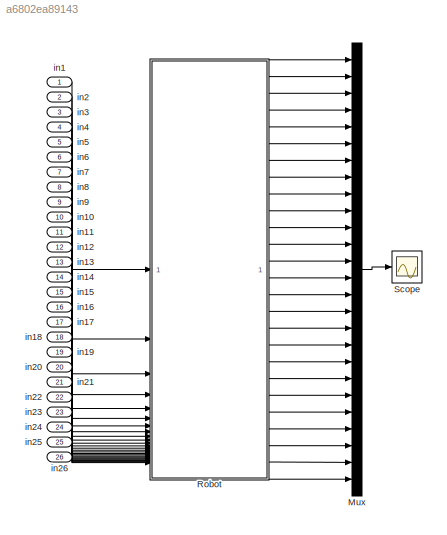
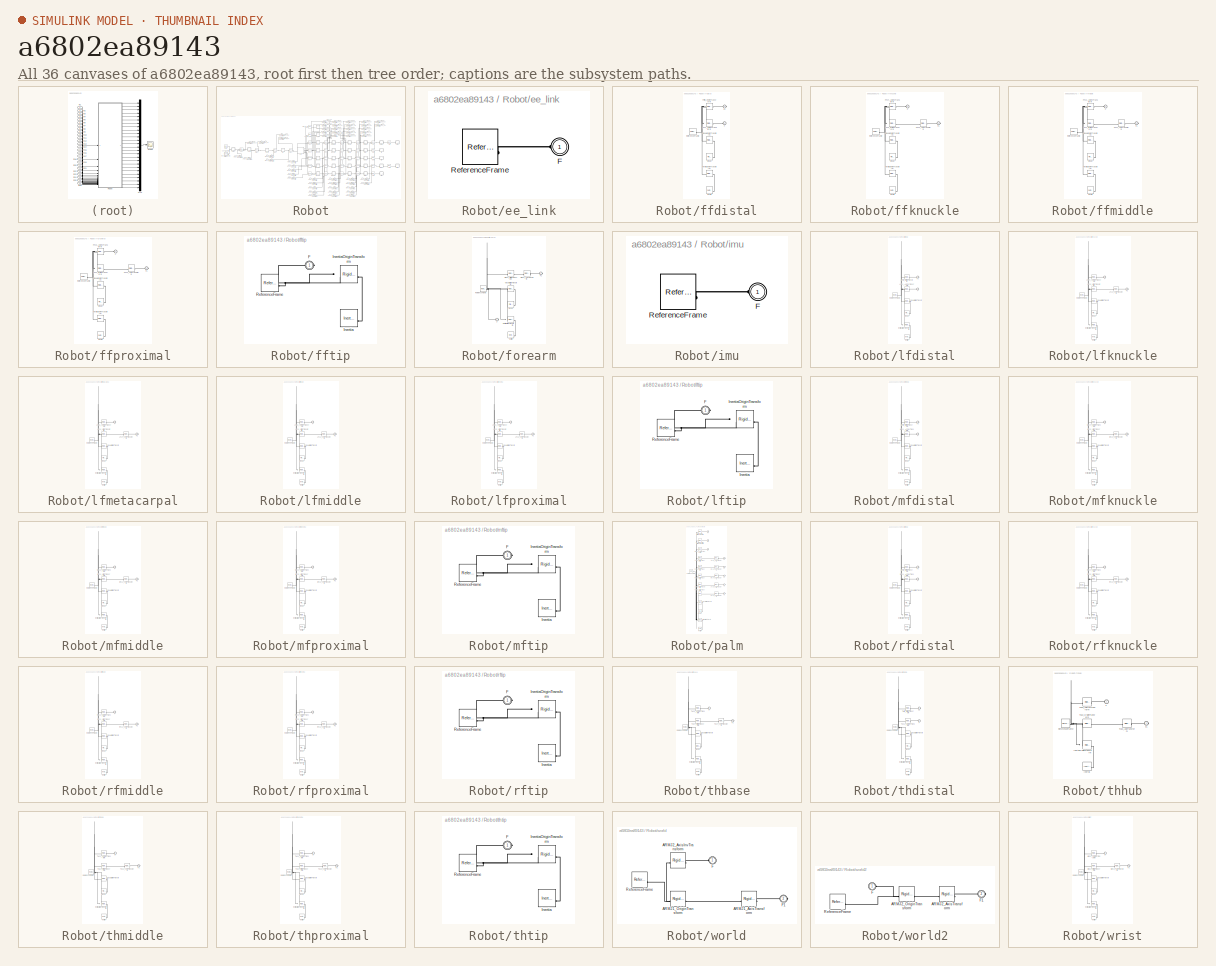
[diagram: thumbnail index - all 36 canvases of the model, root first then tree order]
MODEL slx_a6802ea89143
KIND model
CONFIG AbsTol = auto
CONFIG EnableMultiTasking = off
CONFIG FixedStep = auto
CONFIG MaxStep = auto
CONFIG MinStep = auto
CONFIG RelTol = 1e-3
CONFIG SampleTimeConstraint = Unconstrained
CONFIG SolverName = VariableStepAuto
CONFIG StartTime = 0.0
CONFIG StopTime = 10
BLOCK [Mux] Mux
  DisplayOption = bar
  Inputs = 26
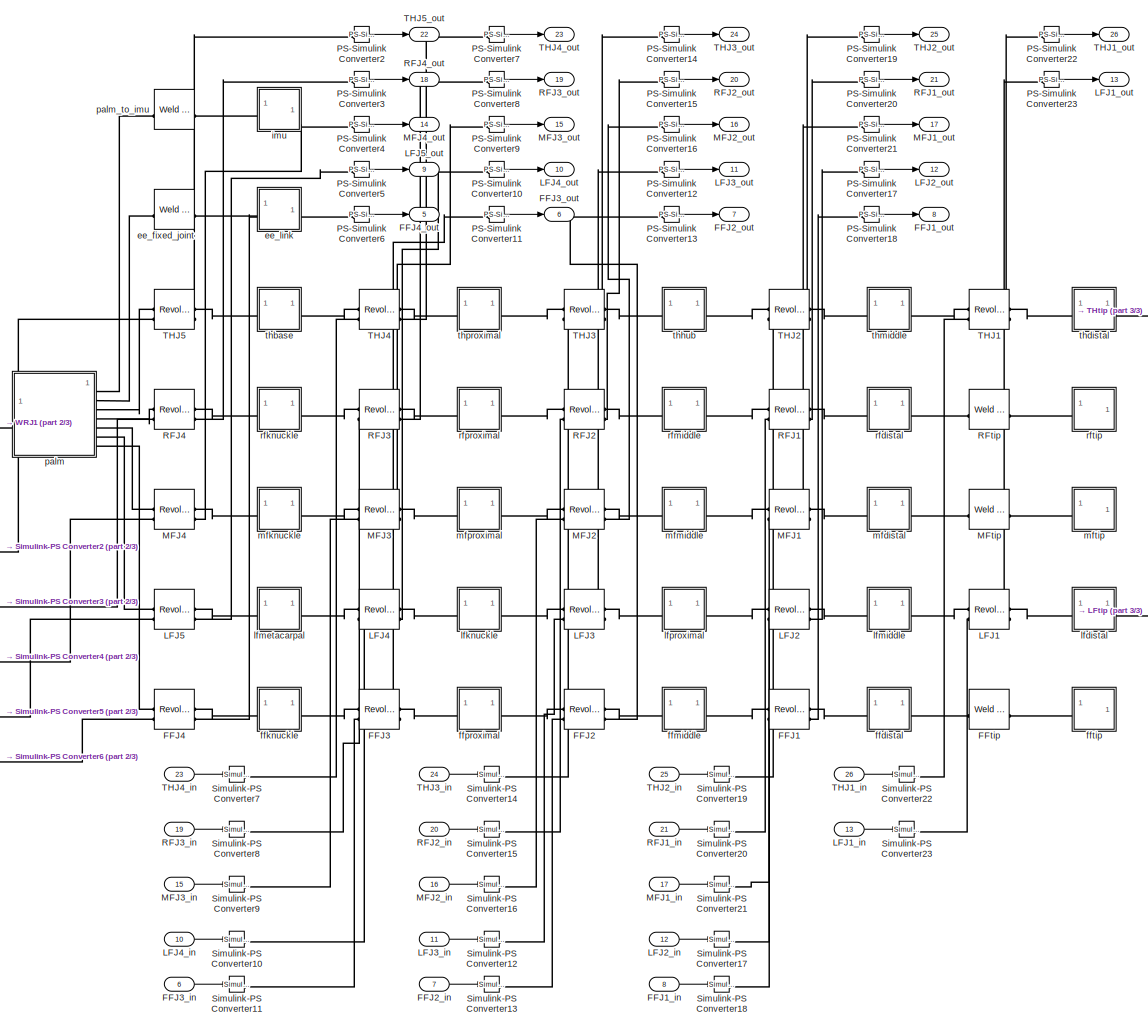
[diagram: Robot - part 1/3, right side, full height]
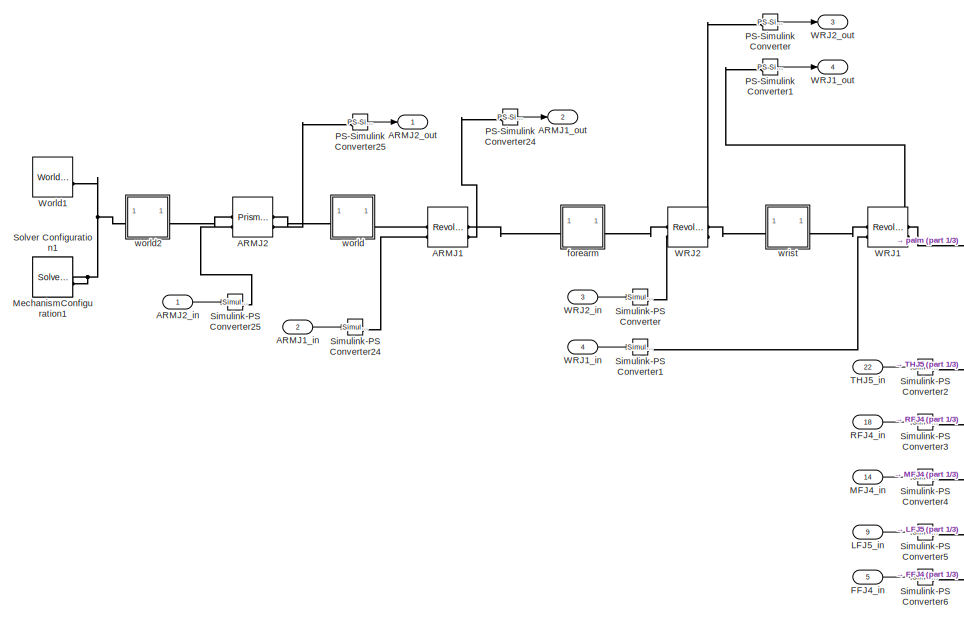
[diagram: Robot - part 2/3, middle left region]
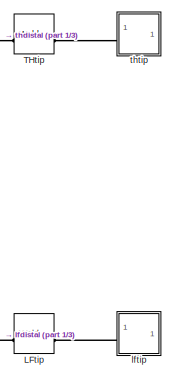
[diagram: Robot - part 3/3, middle right region]
BLOCK [SubSystem] Robot
BLOCK [Reference] Robot/ARMJ1  REF=sm_lib/Joints/Revolute Joint
  SourceBlock = sm_lib/Joints/Revolute Joint
  SourceType = Revolute Joint
BLOCK [Inport] Robot/ARMJ1_in
  Port = 2
BLOCK [Outport] Robot/ARMJ1_out
  Port = 2
BLOCK [Reference] Robot/ARMJ2  REF=sm_lib/Joints/Prismatic
Joint
  SourceBlock = sm_lib/Joints/Prismatic\nJoint
  SourceType = Prismatic\nJoint
BLOCK [Inport] Robot/ARMJ2_in
BLOCK [Outport] Robot/ARMJ2_out
BLOCK [Reference] Robot/FFJ1  REF=sm_lib/Joints/Revolute Joint
  SourceBlock = sm_lib/Joints/Revolute Joint
  SourceType = Revolute Joint
BLOCK [Inport] Robot/FFJ1_in
  Port = 8
BLOCK [Outport] Robot/FFJ1_out
  Port = 8
BLOCK [Reference] Robot/FFJ2  REF=sm_lib/Joints/Revolute Joint
  SourceBlock = sm_lib/Joints/Revolute Joint
  SourceType = Revolute Joint
BLOCK [Inport] Robot/FFJ2_in
  Port = 7
BLOCK [Outport] Robot/FFJ2_out
  Port = 7
BLOCK [Reference] Robot/FFJ3  REF=sm_lib/Joints/Revolute Joint
  SourceBlock = sm_lib/Joints/Revolute Joint
  SourceType = Revolute Joint
BLOCK [Inport] Robot/FFJ3_in
  Port = 6
BLOCK [Outport] Robot/FFJ3_out
  Port = 6
BLOCK [Reference] Robot/FFJ4  REF=sm_lib/Joints/Revolute Joint
  SourceBlock = sm_lib/Joints/Revolute Joint
  SourceType = Revolute Joint
BLOCK [Inport] Robot/FFJ4_in
  Port = 5
BLOCK [Outport] Robot/FFJ4_out
  Port = 5
BLOCK [Reference] Robot/FFtip  REF=sm_lib/Joints/Weld Joint
  SourceBlock = sm_lib/Joints/Weld Joint
  SourceType = Weld Joint
BLOCK [Reference] Robot/LFJ1  REF=sm_lib/Joints/Revolute Joint
  SourceBlock = sm_lib/Joints/Revolute Joint
  SourceType = Revolute Joint
BLOCK [Inport] Robot/LFJ1_in
  Port = 13
BLOCK [Outport] Robot/LFJ1_out
  Port = 13
BLOCK [Reference] Robot/LFJ2  REF=sm_lib/Joints/Revolute Joint
  SourceBlock = sm_lib/Joints/Revolute Joint
  SourceType = Revolute Joint
BLOCK [Inport] Robot/LFJ2_in
  Port = 12
BLOCK [Outport] Robot/LFJ2_out
  Port = 12
BLOCK [Reference] Robot/LFJ3  REF=sm_lib/Joints/Revolute Joint
  SourceBlock = sm_lib/Joints/Revolute Joint
  SourceType = Revolute Joint
BLOCK [Inport] Robot/LFJ3_in
  Port = 11
BLOCK [Outport] Robot/LFJ3_out
  Port = 11
BLOCK [Reference] Robot/LFJ4  REF=sm_lib/Joints/Revolute Joint
  SourceBlock = sm_lib/Joints/Revolute Joint
  SourceType = Revolute Joint
BLOCK [Inport] Robot/LFJ4_in
  Port = 10
BLOCK [Outport] Robot/LFJ4_out
  Port = 10
BLOCK [Reference] Robot/LFJ5  REF=sm_lib/Joints/Revolute Joint
  SourceBlock = sm_lib/Joints/Revolute Joint
  SourceType = Revolute Joint
BLOCK [Inport] Robot/LFJ5_in
  Port = 9
BLOCK [Outport] Robot/LFJ5_out
  Port = 9
BLOCK [Reference] Robot/LFtip  REF=sm_lib/Joints/Weld Joint
  SourceBlock = sm_lib/Joints/Weld Joint
  SourceType = Weld Joint
BLOCK [Reference] Robot/MFJ1  REF=sm_lib/Joints/Revolute Joint
  SourceBlock = sm_lib/Joints/Revolute Joint
  SourceType = Revolute Joint
BLOCK [Inport] Robot/MFJ1_in
  Port = 17
BLOCK [Outport] Robot/MFJ1_out
  Port = 17
BLOCK [Reference] Robot/MFJ2  REF=sm_lib/Joints/Revolute Joint
  SourceBlock = sm_lib/Joints/Revolute Joint
  SourceType = Revolute Joint
BLOCK [Inport] Robot/MFJ2_in
  Port = 16
BLOCK [Outport] Robot/MFJ2_out
  Port = 16
BLOCK [Reference] Robot/MFJ3  REF=sm_lib/Joints/Revolute Joint
  SourceBlock = sm_lib/Joints/Revolute Joint
  SourceType = Revolute Joint
BLOCK [Inport] Robot/MFJ3_in
  Port = 15
BLOCK [Outport] Robot/MFJ3_out
  Port = 15
BLOCK [Reference] Robot/MFJ4  REF=sm_lib/Joints/Revolute Joint
  SourceBlock = sm_lib/Joints/Revolute Joint
  SourceType = Revolute Joint
BLOCK [Inport] Robot/MFJ4_in
  Port = 14
BLOCK [Outport] Robot/MFJ4_out
  Port = 14
BLOCK [Reference] Robot/MFtip  REF=sm_lib/Joints/Weld Joint
  SourceBlock = sm_lib/Joints/Weld Joint
  SourceType = Weld Joint
BLOCK [Reference] Robot/MechanismConfiguration1  REF=sm_lib/Utilities/Mechanism
Configuration
  SourceBlock = sm_lib/Utilities/Mechanism\nConfiguration
  SourceType = Mechanism\nConfiguration
BLOCK [Reference] Robot/PS-Simulink Converter  REF=nesl_utility/PS-Simulink
Converter
  SourceBlock = nesl_utility/PS-Simulink\nConverter
  SourceType = PS-Simulink\nConverter
BLOCK [Reference] Robot/PS-Simulink Converter1  REF=nesl_utility/PS-Simulink
Converter
  SourceBlock = nesl_utility/PS-Simulink\nConverter
  SourceType = PS-Simulink\nConverter
BLOCK [Reference] Robot/PS-Simulink Converter10  REF=nesl_utility/PS-Simulink
Converter
  SourceBlock = nesl_utility/PS-Simulink\nConverter
  SourceType = PS-Simulink\nConverter
BLOCK [Reference] Robot/PS-Simulink Converter11  REF=nesl_utility/PS-Simulink
Converter
  SourceBlock = nesl_utility/PS-Simulink\nConverter
  SourceType = PS-Simulink\nConverter
BLOCK [Reference] Robot/PS-Simulink Converter12  REF=nesl_utility/PS-Simulink
Converter
  SourceBlock = nesl_utility/PS-Simulink\nConverter
  SourceType = PS-Simulink\nConverter
BLOCK [Reference] Robot/PS-Simulink Converter13  REF=nesl_utility/PS-Simulink
Converter
  SourceBlock = nesl_utility/PS-Simulink\nConverter
  SourceType = PS-Simulink\nConverter
BLOCK [Reference] Robot/PS-Simulink Converter14  REF=nesl_utility/PS-Simulink
Converter
  SourceBlock = nesl_utility/PS-Simulink\nConverter
  SourceType = PS-Simulink\nConverter
BLOCK [Reference] Robot/PS-Simulink Converter15  REF=nesl_utility/PS-Simulink
Converter
  SourceBlock = nesl_utility/PS-Simulink\nConverter
  SourceType = PS-Simulink\nConverter
BLOCK [Reference] Robot/PS-Simulink Converter16  REF=nesl_utility/PS-Simulink
Converter
  SourceBlock = nesl_utility/PS-Simulink\nConverter
  SourceType = PS-Simulink\nConverter
BLOCK [Reference] Robot/PS-Simulink Converter17  REF=nesl_utility/PS-Simulink
Converter
  SourceBlock = nesl_utility/PS-Simulink\nConverter
  SourceType = PS-Simulink\nConverter
BLOCK [Reference] Robot/PS-Simulink Converter18  REF=nesl_utility/PS-Simulink
Converter
  SourceBlock = nesl_utility/PS-Simulink\nConverter
  SourceType = PS-Simulink\nConverter
BLOCK [Reference] Robot/PS-Simulink Converter19  REF=nesl_utility/PS-Simulink
Converter
  SourceBlock = nesl_utility/PS-Simulink\nConverter
  SourceType = PS-Simulink\nConverter
BLOCK [Reference] Robot/PS-Simulink Converter2  REF=nesl_utility/PS-Simulink
Converter
  SourceBlock = nesl_utility/PS-Simulink\nConverter
  SourceType = PS-Simulink\nConverter
BLOCK [Reference] Robot/PS-Simulink Converter20  REF=nesl_utility/PS-Simulink
Converter
  SourceBlock = nesl_utility/PS-Simulink\nConverter
  SourceType = PS-Simulink\nConverter
BLOCK [Reference] Robot/PS-Simulink Converter21  REF=nesl_utility/PS-Simulink
Converter
  SourceBlock = nesl_utility/PS-Simulink\nConverter
  SourceType = PS-Simulink\nConverter
BLOCK [Reference] Robot/PS-Simulink Converter22  REF=nesl_utility/PS-Simulink
Converter
  SourceBlock = nesl_utility/PS-Simulink\nConverter
  SourceType = PS-Simulink\nConverter
BLOCK [Reference] Robot/PS-Simulink Converter23  REF=nesl_utility/PS-Simulink
Converter
  SourceBlock = nesl_utility/PS-Simulink\nConverter
  SourceType = PS-Simulink\nConverter
BLOCK [Reference] Robot/PS-Simulink Converter24  REF=nesl_utility/PS-Simulink
Converter
  SourceBlock = nesl_utility/PS-Simulink\nConverter
  SourceType = PS-Simulink\nConverter
BLOCK [Reference] Robot/PS-Simulink Converter25  REF=nesl_utility/PS-Simulink
Converter
  SourceBlock = nesl_utility/PS-Simulink\nConverter
  SourceType = PS-Simulink\nConverter
BLOCK [Reference] Robot/PS-Simulink Converter3  REF=nesl_utility/PS-Simulink
Converter
  SourceBlock = nesl_utility/PS-Simulink\nConverter
  SourceType = PS-Simulink\nConverter
BLOCK [Reference] Robot/PS-Simulink Converter4  REF=nesl_utility/PS-Simulink
Converter
  SourceBlock = nesl_utility/PS-Simulink\nConverter
  SourceType = PS-Simulink\nConverter
BLOCK [Reference] Robot/PS-Simulink Converter5  REF=nesl_utility/PS-Simulink
Converter
  SourceBlock = nesl_utility/PS-Simulink\nConverter
  SourceType = PS-Simulink\nConverter
BLOCK [Reference] Robot/PS-Simulink Converter6  REF=nesl_utility/PS-Simulink
Converter
  SourceBlock = nesl_utility/PS-Simulink\nConverter
  SourceType = PS-Simulink\nConverter
BLOCK [Reference] Robot/PS-Simulink Converter7  REF=nesl_utility/PS-Simulink
Converter
  SourceBlock = nesl_utility/PS-Simulink\nConverter
  SourceType = PS-Simulink\nConverter
BLOCK [Reference] Robot/PS-Simulink Converter8  REF=nesl_utility/PS-Simulink
Converter
  SourceBlock = nesl_utility/PS-Simulink\nConverter
  SourceType = PS-Simulink\nConverter
BLOCK [Reference] Robot/PS-Simulink Converter9  REF=nesl_utility/PS-Simulink
Converter
  SourceBlock = nesl_utility/PS-Simulink\nConverter
  SourceType = PS-Simulink\nConverter
BLOCK [Reference] Robot/RFJ1  REF=sm_lib/Joints/Revolute Joint
  SourceBlock = sm_lib/Joints/Revolute Joint
  SourceType = Revolute Joint
BLOCK [Inport] Robot/RFJ1_in
  Port = 21
BLOCK [Outport] Robot/RFJ1_out
  Port = 21
BLOCK [Reference] Robot/RFJ2  REF=sm_lib/Joints/Revolute Joint
  SourceBlock = sm_lib/Joints/Revolute Joint
  SourceType = Revolute Joint
BLOCK [Inport] Robot/RFJ2_in
  Port = 20
BLOCK [Outport] Robot/RFJ2_out
  Port = 20
BLOCK [Reference] Robot/RFJ3  REF=sm_lib/Joints/Revolute Joint
  SourceBlock = sm_lib/Joints/Revolute Joint
  SourceType = Revolute Joint
BLOCK [Inport] Robot/RFJ3_in
  Port = 19
BLOCK [Outport] Robot/RFJ3_out
  Port = 19
BLOCK [Reference] Robot/RFJ4  REF=sm_lib/Joints/Revolute Joint
  SourceBlock = sm_lib/Joints/Revolute Joint
  SourceType = Revolute Joint
BLOCK [Inport] Robot/RFJ4_in
  Port = 18
BLOCK [Outport] Robot/RFJ4_out
  Port = 18
BLOCK [Reference] Robot/RFtip  REF=sm_lib/Joints/Weld Joint
  SourceBlock = sm_lib/Joints/Weld Joint
  SourceType = Weld Joint
BLOCK [Reference] Robot/Simulink-PS Converter  REF=nesl_utility/Simulink-PS
Converter
  SourceBlock = nesl_utility/Simulink-PS\nConverter
  SourceType = Simulink-PS\nConverter
BLOCK [Reference] Robot/Simulink-PS Converter1  REF=nesl_utility/Simulink-PS
Converter
  SourceBlock = nesl_utility/Simulink-PS\nConverter
  SourceType = Simulink-PS\nConverter
BLOCK [Reference] Robot/Simulink-PS Converter10  REF=nesl_utility/Simulink-PS
Converter
  SourceBlock = nesl_utility/Simulink-PS\nConverter
  SourceType = Simulink-PS\nConverter
BLOCK [Reference] Robot/Simulink-PS Converter11  REF=nesl_utility/Simulink-PS
Converter
  SourceBlock = nesl_utility/Simulink-PS\nConverter
  SourceType = Simulink-PS\nConverter
BLOCK [Reference] Robot/Simulink-PS Converter12  REF=nesl_utility/Simulink-PS
Converter
  SourceBlock = nesl_utility/Simulink-PS\nConverter
  SourceType = Simulink-PS\nConverter
BLOCK [Reference] Robot/Simulink-PS Converter13  REF=nesl_utility/Simulink-PS
Converter
  SourceBlock = nesl_utility/Simulink-PS\nConverter
  SourceType = Simulink-PS\nConverter
BLOCK [Reference] Robot/Simulink-PS Converter14  REF=nesl_utility/Simulink-PS
Converter
  SourceBlock = nesl_utility/Simulink-PS\nConverter
  SourceType = Simulink-PS\nConverter
BLOCK [Reference] Robot/Simulink-PS Converter15  REF=nesl_utility/Simulink-PS
Converter
  SourceBlock = nesl_utility/Simulink-PS\nConverter
  SourceType = Simulink-PS\nConverter
BLOCK [Reference] Robot/Simulink-PS Converter16  REF=nesl_utility/Simulink-PS
Converter
  SourceBlock = nesl_utility/Simulink-PS\nConverter
  SourceType = Simulink-PS\nConverter
BLOCK [Reference] Robot/Simulink-PS Converter17  REF=nesl_utility/Simulink-PS
Converter
  SourceBlock = nesl_utility/Simulink-PS\nConverter
  SourceType = Simulink-PS\nConverter
BLOCK [Reference] Robot/Simulink-PS Converter18  REF=nesl_utility/Simulink-PS
Converter
  SourceBlock = nesl_utility/Simulink-PS\nConverter
  SourceType = Simulink-PS\nConverter
BLOCK [Reference] Robot/Simulink-PS Converter19  REF=nesl_utility/Simulink-PS
Converter
  SourceBlock = nesl_utility/Simulink-PS\nConverter
  SourceType = Simulink-PS\nConverter
BLOCK [Reference] Robot/Simulink-PS Converter2  REF=nesl_utility/Simulink-PS
Converter
  SourceBlock = nesl_utility/Simulink-PS\nConverter
  SourceType = Simulink-PS\nConverter
BLOCK [Reference] Robot/Simulink-PS Converter20  REF=nesl_utility/Simulink-PS
Converter
  SourceBlock = nesl_utility/Simulink-PS\nConverter
  SourceType = Simulink-PS\nConverter
BLOCK [Reference] Robot/Simulink-PS Converter21  REF=nesl_utility/Simulink-PS
Converter
  SourceBlock = nesl_utility/Simulink-PS\nConverter
  SourceType = Simulink-PS\nConverter
BLOCK [Reference] Robot/Simulink-PS Converter22  REF=nesl_utility/Simulink-PS
Converter
  SourceBlock = nesl_utility/Simulink-PS\nConverter
  SourceType = Simulink-PS\nConverter
BLOCK [Reference] Robot/Simulink-PS Converter23  REF=nesl_utility/Simulink-PS
Converter
  SourceBlock = nesl_utility/Simulink-PS\nConverter
  SourceType = Simulink-PS\nConverter
BLOCK [Reference] Robot/Simulink-PS Converter24  REF=nesl_utility/Simulink-PS
Converter
  SourceBlock = nesl_utility/Simulink-PS\nConverter
  SourceType = Simulink-PS\nConverter
BLOCK [Reference] Robot/Simulink-PS Converter25  REF=nesl_utility/Simulink-PS
Converter
  SourceBlock = nesl_utility/Simulink-PS\nConverter
  SourceType = Simulink-PS\nConverter
BLOCK [Reference] Robot/Simulink-PS Converter3  REF=nesl_utility/Simulink-PS
Converter
  SourceBlock = nesl_utility/Simulink-PS\nConverter
  SourceType = Simulink-PS\nConverter
BLOCK [Reference] Robot/Simulink-PS Converter4  REF=nesl_utility/Simulink-PS
Converter
  SourceBlock = nesl_utility/Simulink-PS\nConverter
  SourceType = Simulink-PS\nConverter
BLOCK [Reference] Robot/Simulink-PS Converter5  REF=nesl_utility/Simulink-PS
Converter
  SourceBlock = nesl_utility/Simulink-PS\nConverter
  SourceType = Simulink-PS\nConverter
BLOCK [Reference] Robot/Simulink-PS Converter6  REF=nesl_utility/Simulink-PS
Converter
  SourceBlock = nesl_utility/Simulink-PS\nConverter
  SourceType = Simulink-PS\nConverter
BLOCK [Reference] Robot/Simulink-PS Converter7  REF=nesl_utility/Simulink-PS
Converter
  SourceBlock = nesl_utility/Simulink-PS\nConverter
  SourceType = Simulink-PS\nConverter
BLOCK [Reference] Robot/Simulink-PS Converter8  REF=nesl_utility/Simulink-PS
Converter
  SourceBlock = nesl_utility/Simulink-PS\nConverter
  SourceType = Simulink-PS\nConverter
BLOCK [Reference] Robot/Simulink-PS Converter9  REF=nesl_utility/Simulink-PS
Converter
  SourceBlock = nesl_utility/Simulink-PS\nConverter
  SourceType = Simulink-PS\nConverter
BLOCK [Reference] Robot/Solver Configuration1  REF=nesl_utility/Solver
Configuration
  SourceBlock = nesl_utility/Solver\nConfiguration
  SourceType = Solver\nConfiguration
BLOCK [Reference] Robot/THJ1  REF=sm_lib/Joints/Revolute Joint
  SourceBlock = sm_lib/Joints/Revolute Joint
  SourceType = Revolute Joint
BLOCK [Inport] Robot/THJ1_in
  Port = 26
BLOCK [Outport] Robot/THJ1_out
  Port = 26
BLOCK [Reference] Robot/THJ2  REF=sm_lib/Joints/Revolute Joint
  SourceBlock = sm_lib/Joints/Revolute Joint
  SourceType = Revolute Joint
BLOCK [Inport] Robot/THJ2_in
  Port = 25
BLOCK [Outport] Robot/THJ2_out
  Port = 25
BLOCK [Reference] Robot/THJ3  REF=sm_lib/Joints/Revolute Joint
  SourceBlock = sm_lib/Joints/Revolute Joint
  SourceType = Revolute Joint
BLOCK [Inport] Robot/THJ3_in
  Port = 24
BLOCK [Outport] Robot/THJ3_out
  Port = 24
BLOCK [Reference] Robot/THJ4  REF=sm_lib/Joints/Revolute Joint
  SourceBlock = sm_lib/Joints/Revolute Joint
  SourceType = Revolute Joint
BLOCK [Inport] Robot/THJ4_in
  Port = 23
BLOCK [Outport] Robot/THJ4_out
  Port = 23
BLOCK [Reference] Robot/THJ5  REF=sm_lib/Joints/Revolute Joint
  SourceBlock = sm_lib/Joints/Revolute Joint
  SourceType = Revolute Joint
BLOCK [Inport] Robot/THJ5_in
  Port = 22
BLOCK [Outport] Robot/THJ5_out
  Port = 22
BLOCK [Reference] Robot/THtip  REF=sm_lib/Joints/Weld Joint
  SourceBlock = sm_lib/Joints/Weld Joint
  SourceType = Weld Joint
BLOCK [Reference] Robot/WRJ1  REF=sm_lib/Joints/Revolute Joint
  SourceBlock = sm_lib/Joints/Revolute Joint
  SourceType = Revolute Joint
BLOCK [Inport] Robot/WRJ1_in
  Port = 4
BLOCK [Outport] Robot/WRJ1_out
  Port = 4
BLOCK [Reference] Robot/WRJ2  REF=sm_lib/Joints/Revolute Joint
  SourceBlock = sm_lib/Joints/Revolute Joint
  SourceType = Revolute Joint
BLOCK [Inport] Robot/WRJ2_in
  Port = 3
BLOCK [Outport] Robot/WRJ2_out
  Port = 3
BLOCK [Reference] Robot/World1  REF=sm_lib/Frames and
Transforms/World Frame
  SourceBlock = sm_lib/Frames and\nTransforms/World Frame
  SourceType = World Frame
BLOCK [Reference] Robot/ee_fixed_joint  REF=sm_lib/Joints/Weld Joint
  SourceBlock = sm_lib/Joints/Weld Joint
  SourceType = Weld Joint
BLOCK [SubSystem] Robot/ee_link
BLOCK [PMIOPort] Robot/ee_link/F
  Side = Left
BLOCK [Reference] Robot/ee_link/ReferenceFrame  REF=sm_lib/Frames and
Transforms/Reference
Frame
  SourceBlock = sm_lib/Frames and\nTransforms/Reference\nFrame
  SourceType = Reference\nFrame
BLOCK [SubSystem] Robot/ffdistal
BLOCK [PMIOPort] Robot/ffdistal/F
  Side = Left
BLOCK [PMIOPort] Robot/ffdistal/F1
  Port = 2
  Side = Right
BLOCK [Reference] Robot/ffdistal/FFJ1_AxisInvTransform  REF=sm_lib/Frames and
Transforms/Rigid
Transform
  SourceBlock = sm_lib/Frames and\nTransforms/Rigid\nTransform
  SourceType = Rigid\nTransform
BLOCK [Reference] Robot/ffdistal/FFtip_OriginTransform  REF=sm_lib/Frames and
Transforms/Rigid
Transform
  SourceBlock = sm_lib/Frames and\nTransforms/Rigid\nTransform
  SourceType = Rigid\nTransform
BLOCK [Reference] Robot/ffdistal/Inertia  REF=sm_lib/Body Elements/Inertia
  SourceBlock = sm_lib/Body Elements/Inertia
  SourceType = Inertia
BLOCK [Reference] Robot/ffdistal/InertiaOriginTransform  REF=sm_lib/Frames and
Transforms/Rigid
Transform
  SourceBlock = sm_lib/Frames and\nTransforms/Rigid\nTransform
  SourceType = Rigid\nTransform
BLOCK [Reference] Robot/ffdistal/ReferenceFrame  REF=sm_lib/Frames and
Transforms/Reference
Frame
  SourceBlock = sm_lib/Frames and\nTransforms/Reference\nFrame
  SourceType = Reference\nFrame
BLOCK [Reference] Robot/ffdistal/Visual  REF=sm_lib/Body Elements/File Solid
  SourceBlock = sm_lib/Body Elements/File Solid
  SourceType = File Solid
BLOCK [Reference] Robot/ffdistal/VisualOriginTransform  REF=sm_lib/Frames and
Transforms/Rigid
Transform
  SourceBlock = sm_lib/Frames and\nTransforms/Rigid\nTransform
  SourceType = Rigid\nTransform
BLOCK [SubSystem] Robot/ffknuckle
BLOCK [PMIOPort] Robot/ffknuckle/F
  Side = Left
BLOCK [PMIOPort] Robot/ffknuckle/F1
  Port = 2
  Side = Right
BLOCK [Reference] Robot/ffknuckle/FFJ3_AxisTransform  REF=sm_lib/Frames and
Transforms/Rigid
Transform
  SourceBlock = sm_lib/Frames and\nTransforms/Rigid\nTransform
  SourceType = Rigid\nTransform
BLOCK [Reference] Robot/ffknuckle/FFJ3_OriginTransform  REF=sm_lib/Frames and
Transforms/Rigid
Transform
  SourceBlock = sm_lib/Frames and\nTransforms/Rigid\nTransform
  SourceType = Rigid\nTransform
BLOCK [Reference] Robot/ffknuckle/FFJ4_AxisInvTransform  REF=sm_lib/Frames and
Transforms/Rigid
Transform
  SourceBlock = sm_lib/Frames and\nTransforms/Rigid\nTransform
  SourceType = Rigid\nTransform
BLOCK [Reference] Robot/ffknuckle/Inertia  REF=sm_lib/Body Elements/Inertia
  SourceBlock = sm_lib/Body Elements/Inertia
  SourceType = Inertia
BLOCK [Reference] Robot/ffknuckle/InertiaOriginTransform  REF=sm_lib/Frames and
Transforms/Rigid
Transform
  SourceBlock = sm_lib/Frames and\nTransforms/Rigid\nTransform
  SourceType = Rigid\nTransform
BLOCK [Reference] Robot/ffknuckle/ReferenceFrame  REF=sm_lib/Frames and
Transforms/Reference
Frame
  SourceBlock = sm_lib/Frames and\nTransforms/Reference\nFrame
  SourceType = Reference\nFrame
BLOCK [Reference] Robot/ffknuckle/Visual  REF=sm_lib/Body Elements/File Solid
  SourceBlock = sm_lib/Body Elements/File Solid
  SourceType = File Solid
BLOCK [Reference] Robot/ffknuckle/VisualOriginTransform  REF=sm_lib/Frames and
Transforms/Rigid
Transform
  SourceBlock = sm_lib/Frames and\nTransforms/Rigid\nTransform
  SourceType = Rigid\nTransform
BLOCK [SubSystem] Robot/ffmiddle
BLOCK [PMIOPort] Robot/ffmiddle/F
  Side = Left
BLOCK [PMIOPort] Robot/ffmiddle/F1
  Port = 2
  Side = Right
BLOCK [Reference] Robot/ffmiddle/FFJ1_AxisTransform  REF=sm_lib/Frames and
Transforms/Rigid
Transform
  SourceBlock = sm_lib/Frames and\nTransforms/Rigid\nTransform
  SourceType = Rigid\nTransform
BLOCK [Reference] Robot/ffmiddle/FFJ1_OriginTransform  REF=sm_lib/Frames and
Transforms/Rigid
Transform
  SourceBlock = sm_lib/Frames and\nTransforms/Rigid\nTransform
  SourceType = Rigid\nTransform
BLOCK [Reference] Robot/ffmiddle/FFJ2_AxisInvTransform  REF=sm_lib/Frames and
Transforms/Rigid
Transform
  SourceBlock = sm_lib/Frames and\nTransforms/Rigid\nTransform
  SourceType = Rigid\nTransform
BLOCK [Reference] Robot/ffmiddle/Inertia  REF=sm_lib/Body Elements/Inertia
  SourceBlock = sm_lib/Body Elements/Inertia
  SourceType = Inertia
BLOCK [Reference] Robot/ffmiddle/InertiaOriginTransform  REF=sm_lib/Frames and
Transforms/Rigid
Transform
  SourceBlock = sm_lib/Frames and\nTransforms/Rigid\nTransform
  SourceType = Rigid\nTransform
BLOCK [Reference] Robot/ffmiddle/ReferenceFrame  REF=sm_lib/Frames and
Transforms/Reference
Frame
  SourceBlock = sm_lib/Frames and\nTransforms/Reference\nFrame
  SourceType = Reference\nFrame
BLOCK [Reference] Robot/ffmiddle/Visual  REF=sm_lib/Body Elements/File Solid
  SourceBlock = sm_lib/Body Elements/File Solid
  SourceType = File Solid
BLOCK [Reference] Robot/ffmiddle/VisualOriginTransform  REF=sm_lib/Frames and
Transforms/Rigid
Transform
  SourceBlock = sm_lib/Frames and\nTransforms/Rigid\nTransform
  SourceType = Rigid\nTransform
BLOCK [SubSystem] Robot/ffproximal
BLOCK [PMIOPort] Robot/ffproximal/F
  Side = Left
BLOCK [PMIOPort] Robot/ffproximal/F1
  Port = 2
  Side = Right
BLOCK [Reference] Robot/ffproximal/FFJ2_AxisTransform  REF=sm_lib/Frames and
Transforms/Rigid
Transform
  SourceBlock = sm_lib/Frames and\nTransforms/Rigid\nTransform
  SourceType = Rigid\nTransform
BLOCK [Reference] Robot/ffproximal/FFJ2_OriginTransform  REF=sm_lib/Frames and
Transforms/Rigid
Transform
  SourceBlock = sm_lib/Frames and\nTransforms/Rigid\nTransform
  SourceType = Rigid\nTransform
BLOCK [Reference] Robot/ffproximal/FFJ3_AxisInvTransform  REF=sm_lib/Frames and
Transforms/Rigid
Transform
  SourceBlock = sm_lib/Frames and\nTransforms/Rigid\nTransform
  SourceType = Rigid\nTransform
BLOCK [Reference] Robot/ffproximal/Inertia  REF=sm_lib/Body Elements/Inertia
  SourceBlock = sm_lib/Body Elements/Inertia
  SourceType = Inertia
BLOCK [Reference] Robot/ffproximal/InertiaOriginTransform  REF=sm_lib/Frames and
Transforms/Rigid
Transform
  SourceBlock = sm_lib/Frames and\nTransforms/Rigid\nTransform
  SourceType = Rigid\nTransform
BLOCK [Reference] Robot/ffproximal/ReferenceFrame  REF=sm_lib/Frames and
Transforms/Reference
Frame
  SourceBlock = sm_lib/Frames and\nTransforms/Reference\nFrame
  SourceType = Reference\nFrame
BLOCK [Reference] Robot/ffproximal/Visual  REF=sm_lib/Body Elements/File Solid
  SourceBlock = sm_lib/Body Elements/File Solid
  SourceType = File Solid
BLOCK [Reference] Robot/ffproximal/VisualOriginTransform  REF=sm_lib/Frames and
Transforms/Rigid
Transform
  SourceBlock = sm_lib/Frames and\nTransforms/Rigid\nTransform
  SourceType = Rigid\nTransform
BLOCK [SubSystem] Robot/fftip
BLOCK [PMIOPort] Robot/fftip/F
  Side = Left
BLOCK [Reference] Robot/fftip/Inertia  REF=sm_lib/Body Elements/Inertia
  SourceBlock = sm_lib/Body Elements/Inertia
  SourceType = Inertia
BLOCK [Reference] Robot/fftip/InertiaOriginTransform  REF=sm_lib/Frames and
Transforms/Rigid
Transform
  SourceBlock = sm_lib/Frames and\nTransforms/Rigid\nTransform
  SourceType = Rigid\nTransform
BLOCK [Reference] Robot/fftip/ReferenceFrame  REF=sm_lib/Frames and
Transforms/Reference
Frame
  SourceBlock = sm_lib/Frames and\nTransforms/Reference\nFrame
  SourceType = Reference\nFrame
BLOCK [SubSystem] Robot/forearm
BLOCK [PMIOPort] Robot/forearm/F
  Side = Left
BLOCK [PMIOPort] Robot/forearm/F1
  Port = 2
  Side = Right
BLOCK [Reference] Robot/forearm/Inertia  REF=sm_lib/Body Elements/Inertia
  SourceBlock = sm_lib/Body Elements/Inertia
  SourceType = Inertia
BLOCK [Reference] Robot/forearm/InertiaOriginTransform  REF=sm_lib/Frames and
Transforms/Rigid
Transform
  SourceBlock = sm_lib/Frames and\nTransforms/Rigid\nTransform
  SourceType = Rigid\nTransform
BLOCK [Reference] Robot/forearm/ReferenceFrame  REF=sm_lib/Frames and
Transforms/Reference
Frame
  SourceBlock = sm_lib/Frames and\nTransforms/Reference\nFrame
  SourceType = Reference\nFrame
BLOCK [Reference] Robot/forearm/Visual  REF=sm_lib/Body Elements/File Solid
  SourceBlock = sm_lib/Body Elements/File Solid
  SourceType = File Solid
BLOCK [Reference] Robot/forearm/VisualOriginTransform  REF=sm_lib/Frames and
Transforms/Rigid
Transform
  SourceBlock = sm_lib/Frames and\nTransforms/Rigid\nTransform
  SourceType = Rigid\nTransform
BLOCK [Reference] Robot/forearm/WRJ2_AxisTransform  REF=sm_lib/Frames and
Transforms/Rigid
Transform
  SourceBlock = sm_lib/Frames and\nTransforms/Rigid\nTransform
  SourceType = Rigid\nTransform
BLOCK [Reference] Robot/forearm/WRJ2_OriginTransform  REF=sm_lib/Frames and
Transforms/Rigid
Transform
  SourceBlock = sm_lib/Frames and\nTransforms/Rigid\nTransform
  SourceType = Rigid\nTransform
BLOCK [SubSystem] Robot/imu
BLOCK [PMIOPort] Robot/imu/F
  Side = Left
BLOCK [Reference] Robot/imu/ReferenceFrame  REF=sm_lib/Frames and
Transforms/Reference
Frame
  SourceBlock = sm_lib/Frames and\nTransforms/Reference\nFrame
  SourceType = Reference\nFrame
BLOCK [SubSystem] Robot/lfdistal
BLOCK [PMIOPort] Robot/lfdistal/F
  Side = Left
BLOCK [PMIOPort] Robot/lfdistal/F1
  Port = 2
  Side = Right
BLOCK [Reference] Robot/lfdistal/Inertia  REF=sm_lib/Body Elements/Inertia
  SourceBlock = sm_lib/Body Elements/Inertia
  SourceType = Inertia
BLOCK [Reference] Robot/lfdistal/InertiaOriginTransform  REF=sm_lib/Frames and
Transforms/Rigid
Transform
  SourceBlock = sm_lib/Frames and\nTransforms/Rigid\nTransform
  SourceType = Rigid\nTransform
BLOCK [Reference] Robot/lfdistal/LFJ1_AxisInvTransform  REF=sm_lib/Frames and
Transforms/Rigid
Transform
  SourceBlock = sm_lib/Frames and\nTransforms/Rigid\nTransform
  SourceType = Rigid\nTransform
BLOCK [Reference] Robot/lfdistal/LFtip_OriginTransform  REF=sm_lib/Frames and
Transforms/Rigid
Transform
  SourceBlock = sm_lib/Frames and\nTransforms/Rigid\nTransform
  SourceType = Rigid\nTransform
BLOCK [Reference] Robot/lfdistal/ReferenceFrame  REF=sm_lib/Frames and
Transforms/Reference
Frame
  SourceBlock = sm_lib/Frames and\nTransforms/Reference\nFrame
  SourceType = Reference\nFrame
BLOCK [Reference] Robot/lfdistal/Visual  REF=sm_lib/Body Elements/File Solid
  SourceBlock = sm_lib/Body Elements/File Solid
  SourceType = File Solid
BLOCK [Reference] Robot/lfdistal/VisualOriginTransform  REF=sm_lib/Frames and
Transforms/Rigid
Transform
  SourceBlock = sm_lib/Frames and\nTransforms/Rigid\nTransform
  SourceType = Rigid\nTransform
BLOCK [SubSystem] Robot/lfknuckle
BLOCK [PMIOPort] Robot/lfknuckle/F
  Side = Left
BLOCK [PMIOPort] Robot/lfknuckle/F1
  Port = 2
  Side = Right
BLOCK [Reference] Robot/lfknuckle/Inertia  REF=sm_lib/Body Elements/Inertia
  SourceBlock = sm_lib/Body Elements/Inertia
  SourceType = Inertia
BLOCK [Reference] Robot/lfknuckle/InertiaOriginTransform  REF=sm_lib/Frames and
Transforms/Rigid
Transform
  SourceBlock = sm_lib/Frames and\nTransforms/Rigid\nTransform
  SourceType = Rigid\nTransform
BLOCK [Reference] Robot/lfknuckle/LFJ3_AxisTransform  REF=sm_lib/Frames and
Transforms/Rigid
Transform
  SourceBlock = sm_lib/Frames and\nTransforms/Rigid\nTransform
  SourceType = Rigid\nTransform
BLOCK [Reference] Robot/lfknuckle/LFJ3_OriginTransform  REF=sm_lib/Frames and
Transforms/Rigid
Transform
  SourceBlock = sm_lib/Frames and\nTransforms/Rigid\nTransform
  SourceType = Rigid\nTransform
BLOCK [Reference] Robot/lfknuckle/LFJ4_AxisInvTransform  REF=sm_lib/Frames and
Transforms/Rigid
Transform
  SourceBlock = sm_lib/Frames and\nTransforms/Rigid\nTransform
  SourceType = Rigid\nTransform
BLOCK [Reference] Robot/lfknuckle/ReferenceFrame  REF=sm_lib/Frames and
Transforms/Reference
Frame
  SourceBlock = sm_lib/Frames and\nTransforms/Reference\nFrame
  SourceType = Reference\nFrame
BLOCK [Reference] Robot/lfknuckle/Visual  REF=sm_lib/Body Elements/File Solid
  SourceBlock = sm_lib/Body Elements/File Solid
  SourceType = File Solid
BLOCK [Reference] Robot/lfknuckle/VisualOriginTransform  REF=sm_lib/Frames and
Transforms/Rigid
Transform
  SourceBlock = sm_lib/Frames and\nTransforms/Rigid\nTransform
  SourceType = Rigid\nTransform
BLOCK [SubSystem] Robot/lfmetacarpal
BLOCK [PMIOPort] Robot/lfmetacarpal/F
  Side = Left
BLOCK [PMIOPort] Robot/lfmetacarpal/F1
  Port = 2
  Side = Right
BLOCK [Reference] Robot/lfmetacarpal/Inertia  REF=sm_lib/Body Elements/Inertia
  SourceBlock = sm_lib/Body Elements/Inertia
  SourceType = Inertia
BLOCK [Reference] Robot/lfmetacarpal/InertiaOriginTransform  REF=sm_lib/Frames and
Transforms/Rigid
Transform
  SourceBlock = sm_lib/Frames and\nTransforms/Rigid\nTransform
  SourceType = Rigid\nTransform
BLOCK [Reference] Robot/lfmetacarpal/LFJ4_AxisTransform  REF=sm_lib/Frames and
Transforms/Rigid
Transform
  SourceBlock = sm_lib/Frames and\nTransforms/Rigid\nTransform
  SourceType = Rigid\nTransform
BLOCK [Reference] Robot/lfmetacarpal/LFJ4_OriginTransform  REF=sm_lib/Frames and
Transforms/Rigid
Transform
  SourceBlock = sm_lib/Frames and\nTransforms/Rigid\nTransform
  SourceType = Rigid\nTransform
BLOCK [Reference] Robot/lfmetacarpal/LFJ5_AxisInvTransform  REF=sm_lib/Frames and
Transforms/Rigid
Transform
  SourceBlock = sm_lib/Frames and\nTransforms/Rigid\nTransform
  SourceType = Rigid\nTransform
BLOCK [Reference] Robot/lfmetacarpal/ReferenceFrame  REF=sm_lib/Frames and
Transforms/Reference
Frame
  SourceBlock = sm_lib/Frames and\nTransforms/Reference\nFrame
  SourceType = Reference\nFrame
BLOCK [Reference] Robot/lfmetacarpal/Visual  REF=sm_lib/Body Elements/File Solid
  SourceBlock = sm_lib/Body Elements/File Solid
  SourceType = File Solid
BLOCK [Reference] Robot/lfmetacarpal/VisualOriginTransform  REF=sm_lib/Frames and
Transforms/Rigid
Transform
  SourceBlock = sm_lib/Frames and\nTransforms/Rigid\nTransform
  SourceType = Rigid\nTransform
BLOCK [SubSystem] Robot/lfmiddle
BLOCK [PMIOPort] Robot/lfmiddle/F
  Side = Left
BLOCK [PMIOPort] Robot/lfmiddle/F1
  Port = 2
  Side = Right
BLOCK [Reference] Robot/lfmiddle/Inertia  REF=sm_lib/Body Elements/Inertia
  SourceBlock = sm_lib/Body Elements/Inertia
  SourceType = Inertia
BLOCK [Reference] Robot/lfmiddle/InertiaOriginTransform  REF=sm_lib/Frames and
Transforms/Rigid
Transform
  SourceBlock = sm_lib/Frames and\nTransforms/Rigid\nTransform
  SourceType = Rigid\nTransform
BLOCK [Reference] Robot/lfmiddle/LFJ1_AxisTransform  REF=sm_lib/Frames and
Transforms/Rigid
Transform
  SourceBlock = sm_lib/Frames and\nTransforms/Rigid\nTransform
  SourceType = Rigid\nTransform
BLOCK [Reference] Robot/lfmiddle/LFJ1_OriginTransform  REF=sm_lib/Frames and
Transforms/Rigid
Transform
  SourceBlock = sm_lib/Frames and\nTransforms/Rigid\nTransform
  SourceType = Rigid\nTransform
BLOCK [Reference] Robot/lfmiddle/LFJ2_AxisInvTransform  REF=sm_lib/Frames and
Transforms/Rigid
Transform
  SourceBlock = sm_lib/Frames and\nTransforms/Rigid\nTransform
  SourceType = Rigid\nTransform
BLOCK [Reference] Robot/lfmiddle/ReferenceFrame  REF=sm_lib/Frames and
Transforms/Reference
Frame
  SourceBlock = sm_lib/Frames and\nTransforms/Reference\nFrame
  SourceType = Reference\nFrame
BLOCK [Reference] Robot/lfmiddle/Visual  REF=sm_lib/Body Elements/File Solid
  SourceBlock = sm_lib/Body Elements/File Solid
  SourceType = File Solid
BLOCK [Reference] Robot/lfmiddle/VisualOriginTransform  REF=sm_lib/Frames and
Transforms/Rigid
Transform
  SourceBlock = sm_lib/Frames and\nTransforms/Rigid\nTransform
  SourceType = Rigid\nTransform
BLOCK [SubSystem] Robot/lfproximal
BLOCK [PMIOPort] Robot/lfproximal/F
  Side = Left
BLOCK [PMIOPort] Robot/lfproximal/F1
  Port = 2
  Side = Right
BLOCK [Reference] Robot/lfproximal/Inertia  REF=sm_lib/Body Elements/Inertia
  SourceBlock = sm_lib/Body Elements/Inertia
  SourceType = Inertia
BLOCK [Reference] Robot/lfproximal/InertiaOriginTransform  REF=sm_lib/Frames and
Transforms/Rigid
Transform
  SourceBlock = sm_lib/Frames and\nTransforms/Rigid\nTransform
  SourceType = Rigid\nTransform
BLOCK [Reference] Robot/lfproximal/LFJ2_AxisTransform  REF=sm_lib/Frames and
Transforms/Rigid
Transform
  SourceBlock = sm_lib/Frames and\nTransforms/Rigid\nTransform
  SourceType = Rigid\nTransform
BLOCK [Reference] Robot/lfproximal/LFJ2_OriginTransform  REF=sm_lib/Frames and
Transforms/Rigid
Transform
  SourceBlock = sm_lib/Frames and\nTransforms/Rigid\nTransform
  SourceType = Rigid\nTransform
BLOCK [Reference] Robot/lfproximal/LFJ3_AxisInvTransform  REF=sm_lib/Frames and
Transforms/Rigid
Transform
  SourceBlock = sm_lib/Frames and\nTransforms/Rigid\nTransform
  SourceType = Rigid\nTransform
BLOCK [Reference] Robot/lfproximal/ReferenceFrame  REF=sm_lib/Frames and
Transforms/Reference
Frame
  SourceBlock = sm_lib/Frames and\nTransforms/Reference\nFrame
  SourceType = Reference\nFrame
BLOCK [Reference] Robot/lfproximal/Visual  REF=sm_lib/Body Elements/File Solid
  SourceBlock = sm_lib/Body Elements/File Solid
  SourceType = File Solid
BLOCK [Reference] Robot/lfproximal/VisualOriginTransform  REF=sm_lib/Frames and
Transforms/Rigid
Transform
  SourceBlock = sm_lib/Frames and\nTransforms/Rigid\nTransform
  SourceType = Rigid\nTransform
BLOCK [SubSystem] Robot/lftip
BLOCK [PMIOPort] Robot/lftip/F
  Side = Left
BLOCK [Reference] Robot/lftip/Inertia  REF=sm_lib/Body Elements/Inertia
  SourceBlock = sm_lib/Body Elements/Inertia
  SourceType = Inertia
BLOCK [Reference] Robot/lftip/InertiaOriginTransform  REF=sm_lib/Frames and
Transforms/Rigid
Transform
  SourceBlock = sm_lib/Frames and\nTransforms/Rigid\nTransform
  SourceType = Rigid\nTransform
BLOCK [Reference] Robot/lftip/ReferenceFrame  REF=sm_lib/Frames and
Transforms/Reference
Frame
  SourceBlock = sm_lib/Frames and\nTransforms/Reference\nFrame
  SourceType = Reference\nFrame
BLOCK [SubSystem] Robot/mfdistal
BLOCK [PMIOPort] Robot/mfdistal/F
  Side = Left
BLOCK [PMIOPort] Robot/mfdistal/F1
  Port = 2
  Side = Right
BLOCK [Reference] Robot/mfdistal/Inertia  REF=sm_lib/Body Elements/Inertia
  SourceBlock = sm_lib/Body Elements/Inertia
  SourceType = Inertia
BLOCK [Reference] Robot/mfdistal/InertiaOriginTransform  REF=sm_lib/Frames and
Transforms/Rigid
Transform
  SourceBlock = sm_lib/Frames and\nTransforms/Rigid\nTransform
  SourceType = Rigid\nTransform
BLOCK [Reference] Robot/mfdistal/MFJ1_AxisInvTransform  REF=sm_lib/Frames and
Transforms/Rigid
Transform
  SourceBlock = sm_lib/Frames and\nTransforms/Rigid\nTransform
  SourceType = Rigid\nTransform
BLOCK [Reference] Robot/mfdistal/MFtip_OriginTransform  REF=sm_lib/Frames and
Transforms/Rigid
Transform
  SourceBlock = sm_lib/Frames and\nTransforms/Rigid\nTransform
  SourceType = Rigid\nTransform
BLOCK [Reference] Robot/mfdistal/ReferenceFrame  REF=sm_lib/Frames and
Transforms/Reference
Frame
  SourceBlock = sm_lib/Frames and\nTransforms/Reference\nFrame
  SourceType = Reference\nFrame
BLOCK [Reference] Robot/mfdistal/Visual  REF=sm_lib/Body Elements/File Solid
  SourceBlock = sm_lib/Body Elements/File Solid
  SourceType = File Solid
BLOCK [Reference] Robot/mfdistal/VisualOriginTransform  REF=sm_lib/Frames and
Transforms/Rigid
Transform
  SourceBlock = sm_lib/Frames and\nTransforms/Rigid\nTransform
  SourceType = Rigid\nTransform
BLOCK [SubSystem] Robot/mfknuckle
BLOCK [PMIOPort] Robot/mfknuckle/F
  Side = Left
BLOCK [PMIOPort] Robot/mfknuckle/F1
  Port = 2
  Side = Right
BLOCK [Reference] Robot/mfknuckle/Inertia  REF=sm_lib/Body Elements/Inertia
  SourceBlock = sm_lib/Body Elements/Inertia
  SourceType = Inertia
BLOCK [Reference] Robot/mfknuckle/InertiaOriginTransform  REF=sm_lib/Frames and
Transforms/Rigid
Transform
  SourceBlock = sm_lib/Frames and\nTransforms/Rigid\nTransform
  SourceType = Rigid\nTransform
BLOCK [Reference] Robot/mfknuckle/MFJ3_AxisTransform  REF=sm_lib/Frames and
Transforms/Rigid
Transform
  SourceBlock = sm_lib/Frames and\nTransforms/Rigid\nTransform
  SourceType = Rigid\nTransform
BLOCK [Reference] Robot/mfknuckle/MFJ3_OriginTransform  REF=sm_lib/Frames and
Transforms/Rigid
Transform
  SourceBlock = sm_lib/Frames and\nTransforms/Rigid\nTransform
  SourceType = Rigid\nTransform
BLOCK [Reference] Robot/mfknuckle/MFJ4_AxisInvTransform  REF=sm_lib/Frames and
Transforms/Rigid
Transform
  SourceBlock = sm_lib/Frames and\nTransforms/Rigid\nTransform
  SourceType = Rigid\nTransform
BLOCK [Reference] Robot/mfknuckle/ReferenceFrame  REF=sm_lib/Frames and
Transforms/Reference
Frame
  SourceBlock = sm_lib/Frames and\nTransforms/Reference\nFrame
  SourceType = Reference\nFrame
BLOCK [Reference] Robot/mfknuckle/Visual  REF=sm_lib/Body Elements/File Solid
  SourceBlock = sm_lib/Body Elements/File Solid
  SourceType = File Solid
BLOCK [Reference] Robot/mfknuckle/VisualOriginTransform  REF=sm_lib/Frames and
Transforms/Rigid
Transform
  SourceBlock = sm_lib/Frames and\nTransforms/Rigid\nTransform
  SourceType = Rigid\nTransform
BLOCK [SubSystem] Robot/mfmiddle
BLOCK [PMIOPort] Robot/mfmiddle/F
  Side = Left
BLOCK [PMIOPort] Robot/mfmiddle/F1
  Port = 2
  Side = Right
BLOCK [Reference] Robot/mfmiddle/Inertia  REF=sm_lib/Body Elements/Inertia
  SourceBlock = sm_lib/Body Elements/Inertia
  SourceType = Inertia
BLOCK [Reference] Robot/mfmiddle/InertiaOriginTransform  REF=sm_lib/Frames and
Transforms/Rigid
Transform
  SourceBlock = sm_lib/Frames and\nTransforms/Rigid\nTransform
  SourceType = Rigid\nTransform
BLOCK [Reference] Robot/mfmiddle/MFJ1_AxisTransform  REF=sm_lib/Frames and
Transforms/Rigid
Transform
  SourceBlock = sm_lib/Frames and\nTransforms/Rigid\nTransform
  SourceType = Rigid\nTransform
BLOCK [Reference] Robot/mfmiddle/MFJ1_OriginTransform  REF=sm_lib/Frames and
Transforms/Rigid
Transform
  SourceBlock = sm_lib/Frames and\nTransforms/Rigid\nTransform
  SourceType = Rigid\nTransform
BLOCK [Reference] Robot/mfmiddle/MFJ2_AxisInvTransform  REF=sm_lib/Frames and
Transforms/Rigid
Transform
  SourceBlock = sm_lib/Frames and\nTransforms/Rigid\nTransform
  SourceType = Rigid\nTransform
BLOCK [Reference] Robot/mfmiddle/ReferenceFrame  REF=sm_lib/Frames and
Transforms/Reference
Frame
  SourceBlock = sm_lib/Frames and\nTransforms/Reference\nFrame
  SourceType = Reference\nFrame
BLOCK [Reference] Robot/mfmiddle/Visual  REF=sm_lib/Body Elements/File Solid
  SourceBlock = sm_lib/Body Elements/File Solid
  SourceType = File Solid
BLOCK [Reference] Robot/mfmiddle/VisualOriginTransform  REF=sm_lib/Frames and
Transforms/Rigid
Transform
  SourceBlock = sm_lib/Frames and\nTransforms/Rigid\nTransform
  SourceType = Rigid\nTransform
BLOCK [SubSystem] Robot/mfproximal
BLOCK [PMIOPort] Robot/mfproximal/F
  Side = Left
BLOCK [PMIOPort] Robot/mfproximal/F1
  Port = 2
  Side = Right
BLOCK [Reference] Robot/mfproximal/Inertia  REF=sm_lib/Body Elements/Inertia
  SourceBlock = sm_lib/Body Elements/Inertia
  SourceType = Inertia
BLOCK [Reference] Robot/mfproximal/InertiaOriginTransform  REF=sm_lib/Frames and
Transforms/Rigid
Transform
  SourceBlock = sm_lib/Frames and\nTransforms/Rigid\nTransform
  SourceType = Rigid\nTransform
BLOCK [Reference] Robot/mfproximal/MFJ2_AxisTransform  REF=sm_lib/Frames and
Transforms/Rigid
Transform
  SourceBlock = sm_lib/Frames and\nTransforms/Rigid\nTransform
  SourceType = Rigid\nTransform
BLOCK [Reference] Robot/mfproximal/MFJ2_OriginTransform  REF=sm_lib/Frames and
Transforms/Rigid
Transform
  SourceBlock = sm_lib/Frames and\nTransforms/Rigid\nTransform
  SourceType = Rigid\nTransform
BLOCK [Reference] Robot/mfproximal/MFJ3_AxisInvTransform  REF=sm_lib/Frames and
Transforms/Rigid
Transform
  SourceBlock = sm_lib/Frames and\nTransforms/Rigid\nTransform
  SourceType = Rigid\nTransform
BLOCK [Reference] Robot/mfproximal/ReferenceFrame  REF=sm_lib/Frames and
Transforms/Reference
Frame
  SourceBlock = sm_lib/Frames and\nTransforms/Reference\nFrame
  SourceType = Reference\nFrame
BLOCK [Reference] Robot/mfproximal/Visual  REF=sm_lib/Body Elements/File Solid
  SourceBlock = sm_lib/Body Elements/File Solid
  SourceType = File Solid
BLOCK [Reference] Robot/mfproximal/VisualOriginTransform  REF=sm_lib/Frames and
Transforms/Rigid
Transform
  SourceBlock = sm_lib/Frames and\nTransforms/Rigid\nTransform
  SourceType = Rigid\nTransform
BLOCK [SubSystem] Robot/mftip
BLOCK [PMIOPort] Robot/mftip/F
  Side = Left
BLOCK [Reference] Robot/mftip/Inertia  REF=sm_lib/Body Elements/Inertia
  SourceBlock = sm_lib/Body Elements/Inertia
  SourceType = Inertia
BLOCK [Reference] Robot/mftip/InertiaOriginTransform  REF=sm_lib/Frames and
Transforms/Rigid
Transform
  SourceBlock = sm_lib/Frames and\nTransforms/Rigid\nTransform
  SourceType = Rigid\nTransform
BLOCK [Reference] Robot/mftip/ReferenceFrame  REF=sm_lib/Frames and
Transforms/Reference
Frame
  SourceBlock = sm_lib/Frames and\nTransforms/Reference\nFrame
  SourceType = Reference\nFrame
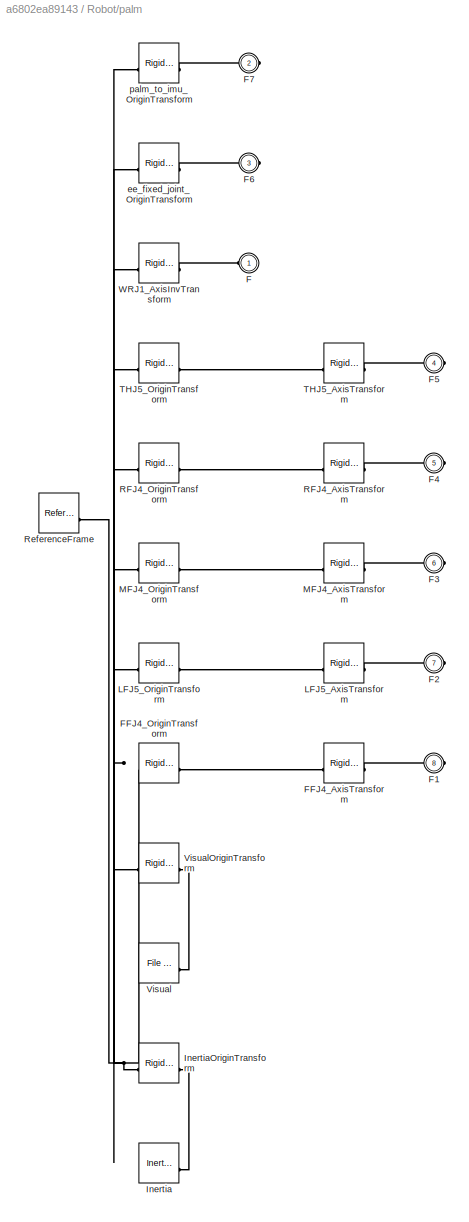
BLOCK [SubSystem] Robot/palm
BLOCK [PMIOPort] Robot/palm/F
  Side = Left
BLOCK [PMIOPort] Robot/palm/F1
  Port = 8
  Side = Right
BLOCK [PMIOPort] Robot/palm/F2
  Port = 7
  Side = Right
BLOCK [PMIOPort] Robot/palm/F3
  Port = 6
  Side = Right
BLOCK [PMIOPort] Robot/palm/F4
  Port = 5
  Side = Right
BLOCK [PMIOPort] Robot/palm/F5
  Port = 4
  Side = Right
BLOCK [PMIOPort] Robot/palm/F6
  Port = 3
  Side = Right
BLOCK [PMIOPort] Robot/palm/F7
  Port = 2
  Side = Right
BLOCK [Reference] Robot/palm/FFJ4_AxisTransform  REF=sm_lib/Frames and
Transforms/Rigid
Transform
  SourceBlock = sm_lib/Frames and\nTransforms/Rigid\nTransform
  SourceType = Rigid\nTransform
BLOCK [Reference] Robot/palm/FFJ4_OriginTransform  REF=sm_lib/Frames and
Transforms/Rigid
Transform
  SourceBlock = sm_lib/Frames and\nTransforms/Rigid\nTransform
  SourceType = Rigid\nTransform
BLOCK [Reference] Robot/palm/Inertia  REF=sm_lib/Body Elements/Inertia
  SourceBlock = sm_lib/Body Elements/Inertia
  SourceType = Inertia
BLOCK [Reference] Robot/palm/InertiaOriginTransform  REF=sm_lib/Frames and
Transforms/Rigid
Transform
  SourceBlock = sm_lib/Frames and\nTransforms/Rigid\nTransform
  SourceType = Rigid\nTransform
BLOCK [Reference] Robot/palm/LFJ5_AxisTransform  REF=sm_lib/Frames and
Transforms/Rigid
Transform
  SourceBlock = sm_lib/Frames and\nTransforms/Rigid\nTransform
  SourceType = Rigid\nTransform
BLOCK [Reference] Robot/palm/LFJ5_OriginTransform  REF=sm_lib/Frames and
Transforms/Rigid
Transform
  SourceBlock = sm_lib/Frames and\nTransforms/Rigid\nTransform
  SourceType = Rigid\nTransform
BLOCK [Reference] Robot/palm/MFJ4_AxisTransform  REF=sm_lib/Frames and
Transforms/Rigid
Transform
  SourceBlock = sm_lib/Frames and\nTransforms/Rigid\nTransform
  SourceType = Rigid\nTransform
BLOCK [Reference] Robot/palm/MFJ4_OriginTransform  REF=sm_lib/Frames and
Transforms/Rigid
Transform
  SourceBlock = sm_lib/Frames and\nTransforms/Rigid\nTransform
  SourceType = Rigid\nTransform
BLOCK [Reference] Robot/palm/RFJ4_AxisTransform  REF=sm_lib/Frames and
Transforms/Rigid
Transform
  SourceBlock = sm_lib/Frames and\nTransforms/Rigid\nTransform
  SourceType = Rigid\nTransform
BLOCK [Reference] Robot/palm/RFJ4_OriginTransform  REF=sm_lib/Frames and
Transforms/Rigid
Transform
  SourceBlock = sm_lib/Frames and\nTransforms/Rigid\nTransform
  SourceType = Rigid\nTransform
BLOCK [Reference] Robot/palm/ReferenceFrame  REF=sm_lib/Frames and
Transforms/Reference
Frame
  SourceBlock = sm_lib/Frames and\nTransforms/Reference\nFrame
  SourceType = Reference\nFrame
BLOCK [Reference] Robot/palm/THJ5_AxisTransform  REF=sm_lib/Frames and
Transforms/Rigid
Transform
  SourceBlock = sm_lib/Frames and\nTransforms/Rigid\nTransform
  SourceType = Rigid\nTransform
BLOCK [Reference] Robot/palm/THJ5_OriginTransform  REF=sm_lib/Frames and
Transforms/Rigid
Transform
  SourceBlock = sm_lib/Frames and\nTransforms/Rigid\nTransform
  SourceType = Rigid\nTransform
BLOCK [Reference] Robot/palm/Visual  REF=sm_lib/Body Elements/File Solid
  SourceBlock = sm_lib/Body Elements/File Solid
  SourceType = File Solid
BLOCK [Reference] Robot/palm/VisualOriginTransform  REF=sm_lib/Frames and
Transforms/Rigid
Transform
  SourceBlock = sm_lib/Frames and\nTransforms/Rigid\nTransform
  SourceType = Rigid\nTransform
BLOCK [Reference] Robot/palm/WRJ1_AxisInvTransform  REF=sm_lib/Frames and
Transforms/Rigid
Transform
  SourceBlock = sm_lib/Frames and\nTransforms/Rigid\nTransform
  SourceType = Rigid\nTransform
BLOCK [Reference] Robot/palm/ee_fixed_joint_OriginTransform  REF=sm_lib/Frames and
Transforms/Rigid
Transform
  SourceBlock = sm_lib/Frames and\nTransforms/Rigid\nTransform
  SourceType = Rigid\nTransform
BLOCK [Reference] Robot/palm/palm_to_imu_OriginTransform  REF=sm_lib/Frames and
Transforms/Rigid
Transform
  SourceBlock = sm_lib/Frames and\nTransforms/Rigid\nTransform
  SourceType = Rigid\nTransform
BLOCK [Reference] Robot/palm_to_imu  REF=sm_lib/Joints/Weld Joint
  SourceBlock = sm_lib/Joints/Weld Joint
  SourceType = Weld Joint
BLOCK [SubSystem] Robot/rfdistal
BLOCK [PMIOPort] Robot/rfdistal/F
  Side = Left
BLOCK [PMIOPort] Robot/rfdistal/F1
  Port = 2
  Side = Right
BLOCK [Reference] Robot/rfdistal/Inertia  REF=sm_lib/Body Elements/Inertia
  SourceBlock = sm_lib/Body Elements/Inertia
  SourceType = Inertia
BLOCK [Reference] Robot/rfdistal/InertiaOriginTransform  REF=sm_lib/Frames and
Transforms/Rigid
Transform
  SourceBlock = sm_lib/Frames and\nTransforms/Rigid\nTransform
  SourceType = Rigid\nTransform
BLOCK [Reference] Robot/rfdistal/RFJ1_AxisInvTransform  REF=sm_lib/Frames and
Transforms/Rigid
Transform
  SourceBlock = sm_lib/Frames and\nTransforms/Rigid\nTransform
  SourceType = Rigid\nTransform
BLOCK [Reference] Robot/rfdistal/RFtip_OriginTransform  REF=sm_lib/Frames and
Transforms/Rigid
Transform
  SourceBlock = sm_lib/Frames and\nTransforms/Rigid\nTransform
  SourceType = Rigid\nTransform
BLOCK [Reference] Robot/rfdistal/ReferenceFrame  REF=sm_lib/Frames and
Transforms/Reference
Frame
  SourceBlock = sm_lib/Frames and\nTransforms/Reference\nFrame
  SourceType = Reference\nFrame
BLOCK [Reference] Robot/rfdistal/Visual  REF=sm_lib/Body Elements/File Solid
  SourceBlock = sm_lib/Body Elements/File Solid
  SourceType = File Solid
BLOCK [Reference] Robot/rfdistal/VisualOriginTransform  REF=sm_lib/Frames and
Transforms/Rigid
Transform
  SourceBlock = sm_lib/Frames and\nTransforms/Rigid\nTransform
  SourceType = Rigid\nTransform
BLOCK [SubSystem] Robot/rfknuckle
BLOCK [PMIOPort] Robot/rfknuckle/F
  Side = Left
BLOCK [PMIOPort] Robot/rfknuckle/F1
  Port = 2
  Side = Right
BLOCK [Reference] Robot/rfknuckle/Inertia  REF=sm_lib/Body Elements/Inertia
  SourceBlock = sm_lib/Body Elements/Inertia
  SourceType = Inertia
BLOCK [Reference] Robot/rfknuckle/InertiaOriginTransform  REF=sm_lib/Frames and
Transforms/Rigid
Transform
  SourceBlock = sm_lib/Frames and\nTransforms/Rigid\nTransform
  SourceType = Rigid\nTransform
BLOCK [Reference] Robot/rfknuckle/RFJ3_AxisTransform  REF=sm_lib/Frames and
Transforms/Rigid
Transform
  SourceBlock = sm_lib/Frames and\nTransforms/Rigid\nTransform
  SourceType = Rigid\nTransform
BLOCK [Reference] Robot/rfknuckle/RFJ3_OriginTransform  REF=sm_lib/Frames and
Transforms/Rigid
Transform
  SourceBlock = sm_lib/Frames and\nTransforms/Rigid\nTransform
  SourceType = Rigid\nTransform
BLOCK [Reference] Robot/rfknuckle/RFJ4_AxisInvTransform  REF=sm_lib/Frames and
Transforms/Rigid
Transform
  SourceBlock = sm_lib/Frames and\nTransforms/Rigid\nTransform
  SourceType = Rigid\nTransform
BLOCK [Reference] Robot/rfknuckle/ReferenceFrame  REF=sm_lib/Frames and
Transforms/Reference
Frame
  SourceBlock = sm_lib/Frames and\nTransforms/Reference\nFrame
  SourceType = Reference\nFrame
BLOCK [Reference] Robot/rfknuckle/Visual  REF=sm_lib/Body Elements/File Solid
  SourceBlock = sm_lib/Body Elements/File Solid
  SourceType = File Solid
BLOCK [Reference] Robot/rfknuckle/VisualOriginTransform  REF=sm_lib/Frames and
Transforms/Rigid
Transform
  SourceBlock = sm_lib/Frames and\nTransforms/Rigid\nTransform
  SourceType = Rigid\nTransform
BLOCK [SubSystem] Robot/rfmiddle
BLOCK [PMIOPort] Robot/rfmiddle/F
  Side = Left
BLOCK [PMIOPort] Robot/rfmiddle/F1
  Port = 2
  Side = Right
BLOCK [Reference] Robot/rfmiddle/Inertia  REF=sm_lib/Body Elements/Inertia
  SourceBlock = sm_lib/Body Elements/Inertia
  SourceType = Inertia
BLOCK [Reference] Robot/rfmiddle/InertiaOriginTransform  REF=sm_lib/Frames and
Transforms/Rigid
Transform
  SourceBlock = sm_lib/Frames and\nTransforms/Rigid\nTransform
  SourceType = Rigid\nTransform
BLOCK [Reference] Robot/rfmiddle/RFJ1_AxisTransform  REF=sm_lib/Frames and
Transforms/Rigid
Transform
  SourceBlock = sm_lib/Frames and\nTransforms/Rigid\nTransform
  SourceType = Rigid\nTransform
BLOCK [Reference] Robot/rfmiddle/RFJ1_OriginTransform  REF=sm_lib/Frames and
Transforms/Rigid
Transform
  SourceBlock = sm_lib/Frames and\nTransforms/Rigid\nTransform
  SourceType = Rigid\nTransform
BLOCK [Reference] Robot/rfmiddle/RFJ2_AxisInvTransform  REF=sm_lib/Frames and
Transforms/Rigid
Transform
  SourceBlock = sm_lib/Frames and\nTransforms/Rigid\nTransform
  SourceType = Rigid\nTransform
BLOCK [Reference] Robot/rfmiddle/ReferenceFrame  REF=sm_lib/Frames and
Transforms/Reference
Frame
  SourceBlock = sm_lib/Frames and\nTransforms/Reference\nFrame
  SourceType = Reference\nFrame
BLOCK [Reference] Robot/rfmiddle/Visual  REF=sm_lib/Body Elements/File Solid
  SourceBlock = sm_lib/Body Elements/File Solid
  SourceType = File Solid
BLOCK [Reference] Robot/rfmiddle/VisualOriginTransform  REF=sm_lib/Frames and
Transforms/Rigid
Transform
  SourceBlock = sm_lib/Frames and\nTransforms/Rigid\nTransform
  SourceType = Rigid\nTransform
BLOCK [SubSystem] Robot/rfproximal
BLOCK [PMIOPort] Robot/rfproximal/F
  Side = Left
BLOCK [PMIOPort] Robot/rfproximal/F1
  Port = 2
  Side = Right
BLOCK [Reference] Robot/rfproximal/Inertia  REF=sm_lib/Body Elements/Inertia
  SourceBlock = sm_lib/Body Elements/Inertia
  SourceType = Inertia
BLOCK [Reference] Robot/rfproximal/InertiaOriginTransform  REF=sm_lib/Frames and
Transforms/Rigid
Transform
  SourceBlock = sm_lib/Frames and\nTransforms/Rigid\nTransform
  SourceType = Rigid\nTransform
BLOCK [Reference] Robot/rfproximal/RFJ2_AxisTransform  REF=sm_lib/Frames and
Transforms/Rigid
Transform
  SourceBlock = sm_lib/Frames and\nTransforms/Rigid\nTransform
  SourceType = Rigid\nTransform
BLOCK [Reference] Robot/rfproximal/RFJ2_OriginTransform  REF=sm_lib/Frames and
Transforms/Rigid
Transform
  SourceBlock = sm_lib/Frames and\nTransforms/Rigid\nTransform
  SourceType = Rigid\nTransform
BLOCK [Reference] Robot/rfproximal/RFJ3_AxisInvTransform  REF=sm_lib/Frames and
Transforms/Rigid
Transform
  SourceBlock = sm_lib/Frames and\nTransforms/Rigid\nTransform
  SourceType = Rigid\nTransform
BLOCK [Reference] Robot/rfproximal/ReferenceFrame  REF=sm_lib/Frames and
Transforms/Reference
Frame
  SourceBlock = sm_lib/Frames and\nTransforms/Reference\nFrame
  SourceType = Reference\nFrame
BLOCK [Reference] Robot/rfproximal/Visual  REF=sm_lib/Body Elements/File Solid
  SourceBlock = sm_lib/Body Elements/File Solid
  SourceType = File Solid
BLOCK [Reference] Robot/rfproximal/VisualOriginTransform  REF=sm_lib/Frames and
Transforms/Rigid
Transform
  SourceBlock = sm_lib/Frames and\nTransforms/Rigid\nTransform
  SourceType = Rigid\nTransform
BLOCK [SubSystem] Robot/rftip
BLOCK [PMIOPort] Robot/rftip/F
  Side = Left
BLOCK [Reference] Robot/rftip/Inertia  REF=sm_lib/Body Elements/Inertia
  SourceBlock = sm_lib/Body Elements/Inertia
  SourceType = Inertia
BLOCK [Reference] Robot/rftip/InertiaOriginTransform  REF=sm_lib/Frames and
Transforms/Rigid
Transform
  SourceBlock = sm_lib/Frames and\nTransforms/Rigid\nTransform
  SourceType = Rigid\nTransform
BLOCK [Reference] Robot/rftip/ReferenceFrame  REF=sm_lib/Frames and
Transforms/Reference
Frame
  SourceBlock = sm_lib/Frames and\nTransforms/Reference\nFrame
  SourceType = Reference\nFrame
BLOCK [SubSystem] Robot/thbase
BLOCK [PMIOPort] Robot/thbase/F
  Side = Left
BLOCK [PMIOPort] Robot/thbase/F1
  Port = 2
  Side = Right
BLOCK [Reference] Robot/thbase/Inertia  REF=sm_lib/Body Elements/Inertia
  SourceBlock = sm_lib/Body Elements/Inertia
  SourceType = Inertia
BLOCK [Reference] Robot/thbase/InertiaOriginTransform  REF=sm_lib/Frames and
Transforms/Rigid
Transform
  SourceBlock = sm_lib/Frames and\nTransforms/Rigid\nTransform
  SourceType = Rigid\nTransform
BLOCK [Reference] Robot/thbase/ReferenceFrame  REF=sm_lib/Frames and
Transforms/Reference
Frame
  SourceBlock = sm_lib/Frames and\nTransforms/Reference\nFrame
  SourceType = Reference\nFrame
BLOCK [Reference] Robot/thbase/THJ4_AxisTransform  REF=sm_lib/Frames and
Transforms/Rigid
Transform
  SourceBlock = sm_lib/Frames and\nTransforms/Rigid\nTransform
  SourceType = Rigid\nTransform
BLOCK [Reference] Robot/thbase/THJ4_OriginTransform  REF=sm_lib/Frames and
Transforms/Rigid
Transform
  SourceBlock = sm_lib/Frames and\nTransforms/Rigid\nTransform
  SourceType = Rigid\nTransform
BLOCK [Reference] Robot/thbase/THJ5_AxisInvTransform  REF=sm_lib/Frames and
Transforms/Rigid
Transform
  SourceBlock = sm_lib/Frames and\nTransforms/Rigid\nTransform
  SourceType = Rigid\nTransform
BLOCK [Reference] Robot/thbase/Visual  REF=sm_lib/Body Elements/Brick Solid
  SourceBlock = sm_lib/Body Elements/Brick Solid
  SourceType = Brick Solid
BLOCK [Reference] Robot/thbase/VisualOriginTransform  REF=sm_lib/Frames and
Transforms/Rigid
Transform
  SourceBlock = sm_lib/Frames and\nTransforms/Rigid\nTransform
  SourceType = Rigid\nTransform
BLOCK [SubSystem] Robot/thdistal
BLOCK [PMIOPort] Robot/thdistal/F
  Side = Left
BLOCK [PMIOPort] Robot/thdistal/F1
  Port = 2
  Side = Right
BLOCK [Reference] Robot/thdistal/Inertia  REF=sm_lib/Body Elements/Inertia
  SourceBlock = sm_lib/Body Elements/Inertia
  SourceType = Inertia
BLOCK [Reference] Robot/thdistal/InertiaOriginTransform  REF=sm_lib/Frames and
Transforms/Rigid
Transform
  SourceBlock = sm_lib/Frames and\nTransforms/Rigid\nTransform
  SourceType = Rigid\nTransform
BLOCK [Reference] Robot/thdistal/ReferenceFrame  REF=sm_lib/Frames and
Transforms/Reference
Frame
  SourceBlock = sm_lib/Frames and\nTransforms/Reference\nFrame
  SourceType = Reference\nFrame
BLOCK [Reference] Robot/thdistal/THJ1_AxisInvTransform  REF=sm_lib/Frames and
Transforms/Rigid
Transform
  SourceBlock = sm_lib/Frames and\nTransforms/Rigid\nTransform
  SourceType = Rigid\nTransform
BLOCK [Reference] Robot/thdistal/THtip_OriginTransform  REF=sm_lib/Frames and
Transforms/Rigid
Transform
  SourceBlock = sm_lib/Frames and\nTransforms/Rigid\nTransform
  SourceType = Rigid\nTransform
BLOCK [Reference] Robot/thdistal/Visual  REF=sm_lib/Body Elements/File Solid
  SourceBlock = sm_lib/Body Elements/File Solid
  SourceType = File Solid
BLOCK [Reference] Robot/thdistal/VisualOriginTransform  REF=sm_lib/Frames and
Transforms/Rigid
Transform
  SourceBlock = sm_lib/Frames and\nTransforms/Rigid\nTransform
  SourceType = Rigid\nTransform
BLOCK [SubSystem] Robot/thhub
BLOCK [PMIOPort] Robot/thhub/F
  Side = Left
BLOCK [PMIOPort] Robot/thhub/F1
  Port = 2
  Side = Right
BLOCK [Reference] Robot/thhub/Inertia  REF=sm_lib/Body Elements/Inertia
  SourceBlock = sm_lib/Body Elements/Inertia
  SourceType = Inertia
BLOCK [Reference] Robot/thhub/InertiaOriginTransform  REF=sm_lib/Frames and
Transforms/Rigid
Transform
  SourceBlock = sm_lib/Frames and\nTransforms/Rigid\nTransform
  SourceType = Rigid\nTransform
BLOCK [Reference] Robot/thhub/ReferenceFrame  REF=sm_lib/Frames and
Transforms/Reference
Frame
  SourceBlock = sm_lib/Frames and\nTransforms/Reference\nFrame
  SourceType = Reference\nFrame
BLOCK [Reference] Robot/thhub/THJ2_AxisTransform  REF=sm_lib/Frames and
Transforms/Rigid
Transform
  SourceBlock = sm_lib/Frames and\nTransforms/Rigid\nTransform
  SourceType = Rigid\nTransform
BLOCK [Reference] Robot/thhub/THJ2_OriginTransform  REF=sm_lib/Frames and
Transforms/Rigid
Transform
  SourceBlock = sm_lib/Frames and\nTransforms/Rigid\nTransform
  SourceType = Rigid\nTransform
BLOCK [Reference] Robot/thhub/THJ3_AxisInvTransform  REF=sm_lib/Frames and
Transforms/Rigid
Transform
  SourceBlock = sm_lib/Frames and\nTransforms/Rigid\nTransform
  SourceType = Rigid\nTransform
BLOCK [SubSystem] Robot/thmiddle
BLOCK [PMIOPort] Robot/thmiddle/F
  Side = Left
BLOCK [PMIOPort] Robot/thmiddle/F1
  Port = 2
  Side = Right
BLOCK [Reference] Robot/thmiddle/Inertia  REF=sm_lib/Body Elements/Inertia
  SourceBlock = sm_lib/Body Elements/Inertia
  SourceType = Inertia
BLOCK [Reference] Robot/thmiddle/InertiaOriginTransform  REF=sm_lib/Frames and
Transforms/Rigid
Transform
  SourceBlock = sm_lib/Frames and\nTransforms/Rigid\nTransform
  SourceType = Rigid\nTransform
BLOCK [Reference] Robot/thmiddle/ReferenceFrame  REF=sm_lib/Frames and
Transforms/Reference
Frame
  SourceBlock = sm_lib/Frames and\nTransforms/Reference\nFrame
  SourceType = Reference\nFrame
BLOCK [Reference] Robot/thmiddle/THJ1_AxisTransform  REF=sm_lib/Frames and
Transforms/Rigid
Transform
  SourceBlock = sm_lib/Frames and\nTransforms/Rigid\nTransform
  SourceType = Rigid\nTransform
BLOCK [Reference] Robot/thmiddle/THJ1_OriginTransform  REF=sm_lib/Frames and
Transforms/Rigid
Transform
  SourceBlock = sm_lib/Frames and\nTransforms/Rigid\nTransform
  SourceType = Rigid\nTransform
BLOCK [Reference] Robot/thmiddle/THJ2_AxisInvTransform  REF=sm_lib/Frames and
Transforms/Rigid
Transform
  SourceBlock = sm_lib/Frames and\nTransforms/Rigid\nTransform
  SourceType = Rigid\nTransform
BLOCK [Reference] Robot/thmiddle/Visual  REF=sm_lib/Body Elements/File Solid
  SourceBlock = sm_lib/Body Elements/File Solid
  SourceType = File Solid
BLOCK [Reference] Robot/thmiddle/VisualOriginTransform  REF=sm_lib/Frames and
Transforms/Rigid
Transform
  SourceBlock = sm_lib/Frames and\nTransforms/Rigid\nTransform
  SourceType = Rigid\nTransform
BLOCK [SubSystem] Robot/thproximal
BLOCK [PMIOPort] Robot/thproximal/F
  Side = Left
BLOCK [PMIOPort] Robot/thproximal/F1
  Port = 2
  Side = Right
BLOCK [Reference] Robot/thproximal/Inertia  REF=sm_lib/Body Elements/Inertia
  SourceBlock = sm_lib/Body Elements/Inertia
  SourceType = Inertia
BLOCK [Reference] Robot/thproximal/InertiaOriginTransform  REF=sm_lib/Frames and
Transforms/Rigid
Transform
  SourceBlock = sm_lib/Frames and\nTransforms/Rigid\nTransform
  SourceType = Rigid\nTransform
BLOCK [Reference] Robot/thproximal/ReferenceFrame  REF=sm_lib/Frames and
Transforms/Reference
Frame
  SourceBlock = sm_lib/Frames and\nTransforms/Reference\nFrame
  SourceType = Reference\nFrame
BLOCK [Reference] Robot/thproximal/THJ3_AxisTransform  REF=sm_lib/Frames and
Transforms/Rigid
Transform
  SourceBlock = sm_lib/Frames and\nTransforms/Rigid\nTransform
  SourceType = Rigid\nTransform
BLOCK [Reference] Robot/thproximal/THJ3_OriginTransform  REF=sm_lib/Frames and
Transforms/Rigid
Transform
  SourceBlock = sm_lib/Frames and\nTransforms/Rigid\nTransform
  SourceType = Rigid\nTransform
BLOCK [Reference] Robot/thproximal/THJ4_AxisInvTransform  REF=sm_lib/Frames and
Transforms/Rigid
Transform
  SourceBlock = sm_lib/Frames and\nTransforms/Rigid\nTransform
  SourceType = Rigid\nTransform
BLOCK [Reference] Robot/thproximal/Visual  REF=sm_lib/Body Elements/File Solid
  SourceBlock = sm_lib/Body Elements/File Solid
  SourceType = File Solid
BLOCK [Reference] Robot/thproximal/VisualOriginTransform  REF=sm_lib/Frames and
Transforms/Rigid
Transform
  SourceBlock = sm_lib/Frames and\nTransforms/Rigid\nTransform
  SourceType = Rigid\nTransform
BLOCK [SubSystem] Robot/thtip
BLOCK [PMIOPort] Robot/thtip/F
  Side = Left
BLOCK [Reference] Robot/thtip/Inertia  REF=sm_lib/Body Elements/Inertia
  SourceBlock = sm_lib/Body Elements/Inertia
  SourceType = Inertia
BLOCK [Reference] Robot/thtip/InertiaOriginTransform  REF=sm_lib/Frames and
Transforms/Rigid
Transform
  SourceBlock = sm_lib/Frames and\nTransforms/Rigid\nTransform
  SourceType = Rigid\nTransform
BLOCK [Reference] Robot/thtip/ReferenceFrame  REF=sm_lib/Frames and
Transforms/Reference
Frame
  SourceBlock = sm_lib/Frames and\nTransforms/Reference\nFrame
  SourceType = Reference\nFrame
BLOCK [SubSystem] Robot/world
BLOCK [Reference] Robot/world/ARMJ1_AxisTransform  REF=sm_lib/Frames and
Transforms/Rigid
Transform
  SourceBlock = sm_lib/Frames and\nTransforms/Rigid\nTransform
  SourceType = Rigid\nTransform
BLOCK [Reference] Robot/world/ARMJ1_OriginTransform  REF=sm_lib/Frames and
Transforms/Rigid
Transform
  SourceBlock = sm_lib/Frames and\nTransforms/Rigid\nTransform
  SourceType = Rigid\nTransform
BLOCK [Reference] Robot/world/ARMJ2_AxisInvTransform  REF=sm_lib/Frames and
Transforms/Rigid
Transform
  SourceBlock = sm_lib/Frames and\nTransforms/Rigid\nTransform
  SourceType = Rigid\nTransform
BLOCK [PMIOPort] Robot/world/F
  Side = Left
BLOCK [PMIOPort] Robot/world/F1
  Port = 2
  Side = Right
BLOCK [Reference] Robot/world/ReferenceFrame  REF=sm_lib/Frames and
Transforms/Reference
Frame
  SourceBlock = sm_lib/Frames and\nTransforms/Reference\nFrame
  SourceType = Reference\nFrame
BLOCK [SubSystem] Robot/world2
BLOCK [Reference] Robot/world2/ARMJ2_AxisTransform  REF=sm_lib/Frames and
Transforms/Rigid
Transform
  SourceBlock = sm_lib/Frames and\nTransforms/Rigid\nTransform
  SourceType = Rigid\nTransform
BLOCK [Reference] Robot/world2/ARMJ2_OriginTransform  REF=sm_lib/Frames and
Transforms/Rigid
Transform
  SourceBlock = sm_lib/Frames and\nTransforms/Rigid\nTransform
  SourceType = Rigid\nTransform
BLOCK [PMIOPort] Robot/world2/F
  Side = Left
BLOCK [PMIOPort] Robot/world2/F1
  Port = 2
  Side = Right
BLOCK [Reference] Robot/world2/ReferenceFrame  REF=sm_lib/Frames and
Transforms/Reference
Frame
  SourceBlock = sm_lib/Frames and\nTransforms/Reference\nFrame
  SourceType = Reference\nFrame
BLOCK [SubSystem] Robot/wrist
BLOCK [PMIOPort] Robot/wrist/F
  Side = Left
BLOCK [PMIOPort] Robot/wrist/F1
  Port = 2
  Side = Right
BLOCK [Reference] Robot/wrist/Inertia  REF=sm_lib/Body Elements/Inertia
  SourceBlock = sm_lib/Body Elements/Inertia
  SourceType = Inertia
BLOCK [Reference] Robot/wrist/InertiaOriginTransform  REF=sm_lib/Frames and
Transforms/Rigid
Transform
  SourceBlock = sm_lib/Frames and\nTransforms/Rigid\nTransform
  SourceType = Rigid\nTransform
BLOCK [Reference] Robot/wrist/ReferenceFrame  REF=sm_lib/Frames and
Transforms/Reference
Frame
  SourceBlock = sm_lib/Frames and\nTransforms/Reference\nFrame
  SourceType = Reference\nFrame
BLOCK [Reference] Robot/wrist/Visual  REF=sm_lib/Body Elements/File Solid
  SourceBlock = sm_lib/Body Elements/File Solid
  SourceType = File Solid
BLOCK [Reference] Robot/wrist/VisualOriginTransform  REF=sm_lib/Frames and
Transforms/Rigid
Transform
  SourceBlock = sm_lib/Frames and\nTransforms/Rigid\nTransform
  SourceType = Rigid\nTransform
BLOCK [Reference] Robot/wrist/WRJ1_AxisTransform  REF=sm_lib/Frames and
Transforms/Rigid
Transform
  SourceBlock = sm_lib/Frames and\nTransforms/Rigid\nTransform
  SourceType = Rigid\nTransform
BLOCK [Reference] Robot/wrist/WRJ1_OriginTransform  REF=sm_lib/Frames and
Transforms/Rigid
Transform
  SourceBlock = sm_lib/Frames and\nTransforms/Rigid\nTransform
  SourceType = Rigid\nTransform
BLOCK [Reference] Robot/wrist/WRJ2_AxisInvTransform  REF=sm_lib/Frames and
Transforms/Rigid
Transform
  SourceBlock = sm_lib/Frames and\nTransforms/Rigid\nTransform
  SourceType = Rigid\nTransform
BLOCK [Scope] Scope
  Floating = off
  NumInputPorts = 1
  ScopeSpecificationString = Simulink.scopes.TimeScopeBlockCfg('CurrentConfiguration', extmgr.ConfigurationSet(extmgr.Configuration('Core','General UI',true),extmgr.Configuration('Core','Source UI',true),extmgr.Configuration('Sources','WiredSimulink',true,'DataLogging',true),extmgr.Configuration('Visuals','Time Domain',true,'SerializedDisplays',{struct('MinYLimReal','-1.00356','MaxYLimReal','2.05076','YLabelReal','','MinYLimM...<+1681ch>
BLOCK [Inport] in1
BLOCK [Inport] in10
  Port = 10
BLOCK [Inport] in11
  Port = 11
BLOCK [Inport] in12
  Port = 12
BLOCK [Inport] in13
  Port = 13
BLOCK [Inport] in14
  Port = 14
BLOCK [Inport] in15
  Port = 15
BLOCK [Inport] in16
  Port = 16
BLOCK [Inport] in17
  Port = 17
BLOCK [Inport] in18
  Port = 18
BLOCK [Inport] in19
  Port = 19
BLOCK [Inport] in2
  Port = 2
BLOCK [Inport] in20
  Port = 20
BLOCK [Inport] in21
  Port = 21
BLOCK [Inport] in22
  Port = 22
BLOCK [Inport] in23
  Port = 23
BLOCK [Inport] in24
  Port = 24
BLOCK [Inport] in25
  Port = 25
BLOCK [Inport] in26
  Port = 26
BLOCK [Inport] in3
  Port = 3
BLOCK [Inport] in4
  Port = 4
BLOCK [Inport] in5
  Port = 5
BLOCK [Inport] in6
  Port = 6
BLOCK [Inport] in7
  Port = 7
BLOCK [Inport] in8
  Port = 8
BLOCK [Inport] in9
  Port = 9
LINE Mux:1 -> Scope:1
LINE Robot/ARMJ1_in:1 -> Robot/Simulink-PS Converter24:1
LINE Robot/ARMJ2_in:1 -> Robot/Simulink-PS Converter25:1
LINE Robot/FFJ1_in:1 -> Robot/Simulink-PS Converter18:1
LINE Robot/FFJ2_in:1 -> Robot/Simulink-PS Converter13:1
LINE Robot/FFJ3_in:1 -> Robot/Simulink-PS Converter11:1
LINE Robot/FFJ4_in:1 -> Robot/Simulink-PS Converter6:1
LINE Robot/LFJ1_in:1 -> Robot/Simulink-PS Converter23:1
LINE Robot/LFJ2_in:1 -> Robot/Simulink-PS Converter17:1
LINE Robot/LFJ3_in:1 -> Robot/Simulink-PS Converter12:1
LINE Robot/LFJ4_in:1 -> Robot/Simulink-PS Converter10:1
LINE Robot/LFJ5_in:1 -> Robot/Simulink-PS Converter5:1
LINE Robot/MFJ1_in:1 -> Robot/Simulink-PS Converter21:1
LINE Robot/MFJ2_in:1 -> Robot/Simulink-PS Converter16:1
LINE Robot/MFJ3_in:1 -> Robot/Simulink-PS Converter9:1
LINE Robot/MFJ4_in:1 -> Robot/Simulink-PS Converter4:1
LINE Robot/PS-Simulink Converter10:1 -> Robot/LFJ4_out:1
LINE Robot/PS-Simulink Converter11:1 -> Robot/FFJ3_out:1
LINE Robot/PS-Simulink Converter12:1 -> Robot/LFJ3_out:1
LINE Robot/PS-Simulink Converter13:1 -> Robot/FFJ2_out:1
LINE Robot/PS-Simulink Converter14:1 -> Robot/THJ3_out:1
LINE Robot/PS-Simulink Converter15:1 -> Robot/RFJ2_out:1
LINE Robot/PS-Simulink Converter16:1 -> Robot/MFJ2_out:1
LINE Robot/PS-Simulink Converter17:1 -> Robot/LFJ2_out:1
LINE Robot/PS-Simulink Converter18:1 -> Robot/FFJ1_out:1
LINE Robot/PS-Simulink Converter19:1 -> Robot/THJ2_out:1
LINE Robot/PS-Simulink Converter1:1 -> Robot/WRJ1_out:1
LINE Robot/PS-Simulink Converter20:1 -> Robot/RFJ1_out:1
LINE Robot/PS-Simulink Converter21:1 -> Robot/MFJ1_out:1
LINE Robot/PS-Simulink Converter22:1 -> Robot/THJ1_out:1
LINE Robot/PS-Simulink Converter23:1 -> Robot/LFJ1_out:1
LINE Robot/PS-Simulink Converter24:1 -> Robot/ARMJ1_out:1
LINE Robot/PS-Simulink Converter25:1 -> Robot/ARMJ2_out:1
LINE Robot/PS-Simulink Converter2:1 -> Robot/THJ5_out:1
LINE Robot/PS-Simulink Converter3:1 -> Robot/RFJ4_out:1
LINE Robot/PS-Simulink Converter4:1 -> Robot/MFJ4_out:1
LINE Robot/PS-Simulink Converter5:1 -> Robot/LFJ5_out:1
LINE Robot/PS-Simulink Converter6:1 -> Robot/FFJ4_out:1
LINE Robot/PS-Simulink Converter7:1 -> Robot/THJ4_out:1
LINE Robot/PS-Simulink Converter8:1 -> Robot/RFJ3_out:1
LINE Robot/PS-Simulink Converter9:1 -> Robot/MFJ3_out:1
LINE Robot/PS-Simulink Converter:1 -> Robot/WRJ2_out:1
LINE Robot/RFJ1_in:1 -> Robot/Simulink-PS Converter20:1
LINE Robot/RFJ2_in:1 -> Robot/Simulink-PS Converter15:1
LINE Robot/RFJ3_in:1 -> Robot/Simulink-PS Converter8:1
LINE Robot/RFJ4_in:1 -> Robot/Simulink-PS Converter3:1
LINE Robot/THJ1_in:1 -> Robot/Simulink-PS Converter22:1
LINE Robot/THJ2_in:1 -> Robot/Simulink-PS Converter19:1
LINE Robot/THJ3_in:1 -> Robot/Simulink-PS Converter14:1
LINE Robot/THJ4_in:1 -> Robot/Simulink-PS Converter7:1
LINE Robot/THJ5_in:1 -> Robot/Simulink-PS Converter2:1
LINE Robot/WRJ1_in:1 -> Robot/Simulink-PS Converter1:1
LINE Robot/WRJ2_in:1 -> Robot/Simulink-PS Converter:1
LINE Robot:1 -> Mux:1
LINE Robot:10 -> Mux:10
LINE Robot:11 -> Mux:11
LINE Robot:12 -> Mux:12
LINE Robot:13 -> Mux:13
LINE Robot:14 -> Mux:14
LINE Robot:15 -> Mux:15
LINE Robot:16 -> Mux:16
LINE Robot:17 -> Mux:17
LINE Robot:18 -> Mux:18
LINE Robot:19 -> Mux:19
LINE Robot:2 -> Mux:2
LINE Robot:20 -> Mux:20
LINE Robot:21 -> Mux:21
LINE Robot:22 -> Mux:22
LINE Robot:23 -> Mux:23
LINE Robot:24 -> Mux:24
LINE Robot:25 -> Mux:25
LINE Robot:26 -> Mux:26
LINE Robot:3 -> Mux:3
LINE Robot:4 -> Mux:4
LINE Robot:5 -> Mux:5
LINE Robot:6 -> Mux:6
LINE Robot:7 -> Mux:7
LINE Robot:8 -> Mux:8
LINE Robot:9 -> Mux:9
LINE in10:1 -> Robot:10
LINE in11:1 -> Robot:11
LINE in12:1 -> Robot:12
LINE in13:1 -> Robot:13
LINE in14:1 -> Robot:14
LINE in15:1 -> Robot:15
LINE in16:1 -> Robot:16
LINE in17:1 -> Robot:17
LINE in18:1 -> Robot:18
LINE in19:1 -> Robot:19
LINE in1:1 -> Robot:1
LINE in20:1 -> Robot:20
LINE in21:1 -> Robot:21
LINE in22:1 -> Robot:22
LINE in23:1 -> Robot:23
LINE in24:1 -> Robot:24
LINE in25:1 -> Robot:25
LINE in26:1 -> Robot:26
LINE in2:1 -> Robot:2
LINE in3:1 -> Robot:3
LINE in4:1 -> Robot:4
LINE in5:1 -> Robot:5
LINE in6:1 -> Robot:6
LINE in7:1 -> Robot:7
LINE in8:1 -> Robot:8
LINE in9:1 -> Robot:9
PLINE Robot/ARMJ1:LConn1 -- Robot/world:RConn1
PLINE Robot/ARMJ1:LConn2 -- Robot/Simulink-PS Converter24:RConn1
PLINE Robot/ARMJ1:RConn1 -- Robot/forearm:LConn1
PLINE Robot/ARMJ1:RConn2 -- Robot/PS-Simulink Converter24:LConn1
PLINE Robot/ARMJ2:LConn1 -- Robot/world2:RConn1
PLINE Robot/ARMJ2:LConn2 -- Robot/Simulink-PS Converter25:RConn1
PLINE Robot/ARMJ2:RConn1 -- Robot/world:LConn1
PLINE Robot/ARMJ2:RConn2 -- Robot/PS-Simulink Converter25:LConn1
PLINE Robot/FFJ1:LConn1 -- Robot/ffmiddle:RConn1
PLINE Robot/FFJ1:LConn2 -- Robot/Simulink-PS Converter18:RConn1
PLINE Robot/FFJ1:RConn1 -- Robot/ffdistal:LConn1
PLINE Robot/FFJ1:RConn2 -- Robot/PS-Simulink Converter18:LConn1
PLINE Robot/FFJ2:LConn1 -- Robot/ffproximal:RConn1
PLINE Robot/FFJ2:LConn2 -- Robot/Simulink-PS Converter13:RConn1
PLINE Robot/FFJ2:RConn1 -- Robot/ffmiddle:LConn1
PLINE Robot/FFJ2:RConn2 -- Robot/PS-Simulink Converter13:LConn1
PLINE Robot/FFJ3:LConn1 -- Robot/ffknuckle:RConn1
PLINE Robot/FFJ3:LConn2 -- Robot/Simulink-PS Converter11:RConn1
PLINE Robot/FFJ3:RConn1 -- Robot/ffproximal:LConn1
PLINE Robot/FFJ3:RConn2 -- Robot/PS-Simulink Converter11:LConn1
PLINE Robot/FFJ4:LConn1 -- Robot/palm:RConn7
PLINE Robot/FFJ4:LConn2 -- Robot/Simulink-PS Converter6:RConn1
PLINE Robot/FFJ4:RConn1 -- Robot/ffknuckle:LConn1
PLINE Robot/FFJ4:RConn2 -- Robot/PS-Simulink Converter6:LConn1
PLINE Robot/FFtip:LConn1 -- Robot/ffdistal:RConn1
PLINE Robot/FFtip:RConn1 -- Robot/fftip:LConn1
PLINE Robot/LFJ1:LConn1 -- Robot/lfmiddle:RConn1
PLINE Robot/LFJ1:LConn2 -- Robot/Simulink-PS Converter23:RConn1
PLINE Robot/LFJ1:RConn1 -- Robot/lfdistal:LConn1
PLINE Robot/LFJ1:RConn2 -- Robot/PS-Simulink Converter23:LConn1
PLINE Robot/LFJ2:LConn1 -- Robot/lfproximal:RConn1
PLINE Robot/LFJ2:LConn2 -- Robot/Simulink-PS Converter17:RConn1
PLINE Robot/LFJ2:RConn1 -- Robot/lfmiddle:LConn1
PLINE Robot/LFJ2:RConn2 -- Robot/PS-Simulink Converter17:LConn1
PLINE Robot/LFJ3:LConn1 -- Robot/lfknuckle:RConn1
PLINE Robot/LFJ3:LConn2 -- Robot/Simulink-PS Converter12:RConn1
PLINE Robot/LFJ3:RConn1 -- Robot/lfproximal:LConn1
PLINE Robot/LFJ3:RConn2 -- Robot/PS-Simulink Converter12:LConn1
PLINE Robot/LFJ4:LConn1 -- Robot/lfmetacarpal:RConn1
PLINE Robot/LFJ4:LConn2 -- Robot/Simulink-PS Converter10:RConn1
PLINE Robot/LFJ4:RConn1 -- Robot/lfknuckle:LConn1
PLINE Robot/LFJ4:RConn2 -- Robot/PS-Simulink Converter10:LConn1
PLINE Robot/LFJ5:LConn1 -- Robot/palm:RConn6
PLINE Robot/LFJ5:LConn2 -- Robot/Simulink-PS Converter5:RConn1
PLINE Robot/LFJ5:RConn1 -- Robot/lfmetacarpal:LConn1
PLINE Robot/LFJ5:RConn2 -- Robot/PS-Simulink Converter5:LConn1
PLINE Robot/LFtip:LConn1 -- Robot/lfdistal:RConn1
PLINE Robot/LFtip:RConn1 -- Robot/lftip:LConn1
PLINE Robot/MFJ1:LConn1 -- Robot/mfmiddle:RConn1
PLINE Robot/MFJ1:LConn2 -- Robot/Simulink-PS Converter21:RConn1
PLINE Robot/MFJ1:RConn1 -- Robot/mfdistal:LConn1
PLINE Robot/MFJ1:RConn2 -- Robot/PS-Simulink Converter21:LConn1
PLINE Robot/MFJ2:LConn1 -- Robot/mfproximal:RConn1
PLINE Robot/MFJ2:LConn2 -- Robot/Simulink-PS Converter16:RConn1
PLINE Robot/MFJ2:RConn1 -- Robot/mfmiddle:LConn1
PLINE Robot/MFJ2:RConn2 -- Robot/PS-Simulink Converter16:LConn1
PLINE Robot/MFJ3:LConn1 -- Robot/mfknuckle:RConn1
PLINE Robot/MFJ3:LConn2 -- Robot/Simulink-PS Converter9:RConn1
PLINE Robot/MFJ3:RConn1 -- Robot/mfproximal:LConn1
PLINE Robot/MFJ3:RConn2 -- Robot/PS-Simulink Converter9:LConn1
PLINE Robot/MFJ4:LConn1 -- Robot/palm:RConn5
PLINE Robot/MFJ4:LConn2 -- Robot/Simulink-PS Converter4:RConn1
PLINE Robot/MFJ4:RConn1 -- Robot/mfknuckle:LConn1
PLINE Robot/MFJ4:RConn2 -- Robot/PS-Simulink Converter4:LConn1
PLINE Robot/MFtip:LConn1 -- Robot/mfdistal:RConn1
PLINE Robot/MFtip:RConn1 -- Robot/mftip:LConn1
PNET net1: Robot/MechanismConfiguration1:RConn1 -- Robot/Solver Configuration1:RConn1 -- Robot/World1:RConn1 -- Robot/world2:LConn1
PLINE Robot/PS-Simulink Converter14:LConn1 -- Robot/THJ3:RConn2
PLINE Robot/PS-Simulink Converter15:LConn1 -- Robot/RFJ2:RConn2
PLINE Robot/PS-Simulink Converter19:LConn1 -- Robot/THJ2:RConn2
PLINE Robot/PS-Simulink Converter1:LConn1 -- Robot/WRJ1:RConn2
PLINE Robot/PS-Simulink Converter20:LConn1 -- Robot/RFJ1:RConn2
PLINE Robot/PS-Simulink Converter22:LConn1 -- Robot/THJ1:RConn2
PLINE Robot/PS-Simulink Converter2:LConn1 -- Robot/THJ5:RConn2
PLINE Robot/PS-Simulink Converter3:LConn1 -- Robot/RFJ4:RConn2
PLINE Robot/PS-Simulink Converter7:LConn1 -- Robot/THJ4:RConn2
PLINE Robot/PS-Simulink Converter8:LConn1 -- Robot/RFJ3:RConn2
PLINE Robot/PS-Simulink Converter:LConn1 -- Robot/WRJ2:RConn2
PLINE Robot/RFJ1:LConn1 -- Robot/rfmiddle:RConn1
PLINE Robot/RFJ1:LConn2 -- Robot/Simulink-PS Converter20:RConn1
PLINE Robot/RFJ1:RConn1 -- Robot/rfdistal:LConn1
PLINE Robot/RFJ2:LConn1 -- Robot/rfproximal:RConn1
PLINE Robot/RFJ2:LConn2 -- Robot/Simulink-PS Converter15:RConn1
PLINE Robot/RFJ2:RConn1 -- Robot/rfmiddle:LConn1
PLINE Robot/RFJ3:LConn1 -- Robot/rfknuckle:RConn1
PLINE Robot/RFJ3:LConn2 -- Robot/Simulink-PS Converter8:RConn1
PLINE Robot/RFJ3:RConn1 -- Robot/rfproximal:LConn1
PLINE Robot/RFJ4:LConn1 -- Robot/palm:RConn4
PLINE Robot/RFJ4:LConn2 -- Robot/Simulink-PS Converter3:RConn1
PLINE Robot/RFJ4:RConn1 -- Robot/rfknuckle:LConn1
PLINE Robot/RFtip:LConn1 -- Robot/rfdistal:RConn1
PLINE Robot/RFtip:RConn1 -- Robot/rftip:LConn1
PLINE Robot/Simulink-PS Converter14:RConn1 -- Robot/THJ3:LConn2
PLINE Robot/Simulink-PS Converter19:RConn1 -- Robot/THJ2:LConn2
PLINE Robot/Simulink-PS Converter1:RConn1 -- Robot/WRJ1:LConn2
PLINE Robot/Simulink-PS Converter22:RConn1 -- Robot/THJ1:LConn2
PLINE Robot/Simulink-PS Converter2:RConn1 -- Robot/THJ5:LConn2
PLINE Robot/Simulink-PS Converter7:RConn1 -- Robot/THJ4:LConn2
PLINE Robot/Simulink-PS Converter:RConn1 -- Robot/WRJ2:LConn2
PLINE Robot/THJ1:LConn1 -- Robot/thmiddle:RConn1
PLINE Robot/THJ1:RConn1 -- Robot/thdistal:LConn1
PLINE Robot/THJ2:LConn1 -- Robot/thhub:RConn1
PLINE Robot/THJ2:RConn1 -- Robot/thmiddle:LConn1
PLINE Robot/THJ3:LConn1 -- Robot/thproximal:RConn1
PLINE Robot/THJ3:RConn1 -- Robot/thhub:LConn1
PLINE Robot/THJ4:LConn1 -- Robot/thbase:RConn1
PLINE Robot/THJ4:RConn1 -- Robot/thproximal:LConn1
PLINE Robot/THJ5:LConn1 -- Robot/palm:RConn3
PLINE Robot/THJ5:RConn1 -- Robot/thbase:LConn1
PLINE Robot/THtip:LConn1 -- Robot/thdistal:RConn1
PLINE Robot/THtip:RConn1 -- Robot/thtip:LConn1
PLINE Robot/WRJ1:LConn1 -- Robot/wrist:RConn1
PLINE Robot/WRJ1:RConn1 -- Robot/palm:LConn1
PLINE Robot/WRJ2:LConn1 -- Robot/forearm:RConn1
PLINE Robot/WRJ2:RConn1 -- Robot/wrist:LConn1
PLINE Robot/ee_fixed_joint:LConn1 -- Robot/palm:RConn2
PLINE Robot/ee_fixed_joint:RConn1 -- Robot/ee_link:LConn1
PLINE Robot/ee_link/F:RConn1 -- Robot/ee_link/ReferenceFrame:RConn1
PLINE Robot/ffdistal/F1:RConn1 -- Robot/ffdistal/FFtip_OriginTransform:RConn1
PLINE Robot/ffdistal/F:RConn1 -- Robot/ffdistal/FFJ1_AxisInvTransform:RConn1
PNET net2: Robot/ffdistal/FFJ1_AxisInvTransform:LConn1 -- Robot/ffdistal/FFtip_OriginTransform:LConn1 -- Robot/ffdistal/InertiaOriginTransform:LConn1 -- Robot/ffdistal/ReferenceFrame:RConn1 -- Robot/ffdistal/VisualOriginTransform:LConn1
PLINE Robot/ffdistal/Inertia:RConn1 -- Robot/ffdistal/InertiaOriginTransform:RConn1
PLINE Robot/ffdistal/Visual:RConn1 -- Robot/ffdistal/VisualOriginTransform:RConn1
PLINE Robot/ffknuckle/F1:RConn1 -- Robot/ffknuckle/FFJ3_AxisTransform:RConn1
PLINE Robot/ffknuckle/F:RConn1 -- Robot/ffknuckle/FFJ4_AxisInvTransform:RConn1
PLINE Robot/ffknuckle/FFJ3_AxisTransform:LConn1 -- Robot/ffknuckle/FFJ3_OriginTransform:RConn1
PNET net3: Robot/ffknuckle/FFJ3_OriginTransform:LConn1 -- Robot/ffknuckle/FFJ4_AxisInvTransform:LConn1 -- Robot/ffknuckle/InertiaOriginTransform:LConn1 -- Robot/ffknuckle/ReferenceFrame:RConn1 -- Robot/ffknuckle/VisualOriginTransform:LConn1
PLINE Robot/ffknuckle/Inertia:RConn1 -- Robot/ffknuckle/InertiaOriginTransform:RConn1
PLINE Robot/ffknuckle/Visual:RConn1 -- Robot/ffknuckle/VisualOriginTransform:RConn1
PLINE Robot/ffmiddle/F1:RConn1 -- Robot/ffmiddle/FFJ1_AxisTransform:RConn1
PLINE Robot/ffmiddle/F:RConn1 -- Robot/ffmiddle/FFJ2_AxisInvTransform:RConn1
PLINE Robot/ffmiddle/FFJ1_AxisTransform:LConn1 -- Robot/ffmiddle/FFJ1_OriginTransform:RConn1
PNET net4: Robot/ffmiddle/FFJ1_OriginTransform:LConn1 -- Robot/ffmiddle/FFJ2_AxisInvTransform:LConn1 -- Robot/ffmiddle/InertiaOriginTransform:LConn1 -- Robot/ffmiddle/ReferenceFrame:RConn1 -- Robot/ffmiddle/VisualOriginTransform:LConn1
PLINE Robot/ffmiddle/Inertia:RConn1 -- Robot/ffmiddle/InertiaOriginTransform:RConn1
PLINE Robot/ffmiddle/Visual:RConn1 -- Robot/ffmiddle/VisualOriginTransform:RConn1
PLINE Robot/ffproximal/F1:RConn1 -- Robot/ffproximal/FFJ2_AxisTransform:RConn1
PLINE Robot/ffproximal/F:RConn1 -- Robot/ffproximal/FFJ3_AxisInvTransform:RConn1
PLINE Robot/ffproximal/FFJ2_AxisTransform:LConn1 -- Robot/ffproximal/FFJ2_OriginTransform:RConn1
PNET net5: Robot/ffproximal/FFJ2_OriginTransform:LConn1 -- Robot/ffproximal/FFJ3_AxisInvTransform:LConn1 -- Robot/ffproximal/InertiaOriginTransform:LConn1 -- Robot/ffproximal/ReferenceFrame:RConn1 -- Robot/ffproximal/VisualOriginTransform:LConn1
PLINE Robot/ffproximal/Inertia:RConn1 -- Robot/ffproximal/InertiaOriginTransform:RConn1
PLINE Robot/ffproximal/Visual:RConn1 -- Robot/ffproximal/VisualOriginTransform:RConn1
PNET net6: Robot/fftip/F:RConn1 -- Robot/fftip/InertiaOriginTransform:LConn1 -- Robot/fftip/ReferenceFrame:RConn1
PLINE Robot/fftip/Inertia:RConn1 -- Robot/fftip/InertiaOriginTransform:RConn1
PLINE Robot/forearm/F1:RConn1 -- Robot/forearm/WRJ2_AxisTransform:RConn1
PNET net7: Robot/forearm/F:RConn1 -- Robot/forearm/InertiaOriginTransform:LConn1 -- Robot/forearm/ReferenceFrame:RConn1 -- Robot/forearm/VisualOriginTransform:LConn1 -- Robot/forearm/WRJ2_OriginTransform:LConn1
PLINE Robot/forearm/Inertia:RConn1 -- Robot/forearm/InertiaOriginTransform:RConn1
PLINE Robot/forearm/Visual:RConn1 -- Robot/forearm/VisualOriginTransform:RConn1
PLINE Robot/forearm/WRJ2_AxisTransform:LConn1 -- Robot/forearm/WRJ2_OriginTransform:RConn1
PLINE Robot/imu/F:RConn1 -- Robot/imu/ReferenceFrame:RConn1
PLINE Robot/imu:LConn1 -- Robot/palm_to_imu:RConn1
PLINE Robot/lfdistal/F1:RConn1 -- Robot/lfdistal/LFtip_OriginTransform:RConn1
PLINE Robot/lfdistal/F:RConn1 -- Robot/lfdistal/LFJ1_AxisInvTransform:RConn1
PLINE Robot/lfdistal/Inertia:RConn1 -- Robot/lfdistal/InertiaOriginTransform:RConn1
PNET net8: Robot/lfdistal/InertiaOriginTransform:LConn1 -- Robot/lfdistal/LFJ1_AxisInvTransform:LConn1 -- Robot/lfdistal/LFtip_OriginTransform:LConn1 -- Robot/lfdistal/ReferenceFrame:RConn1 -- Robot/lfdistal/VisualOriginTransform:LConn1
PLINE Robot/lfdistal/Visual:RConn1 -- Robot/lfdistal/VisualOriginTransform:RConn1
PLINE Robot/lfknuckle/F1:RConn1 -- Robot/lfknuckle/LFJ3_AxisTransform:RConn1
PLINE Robot/lfknuckle/F:RConn1 -- Robot/lfknuckle/LFJ4_AxisInvTransform:RConn1
PLINE Robot/lfknuckle/Inertia:RConn1 -- Robot/lfknuckle/InertiaOriginTransform:RConn1
PNET net9: Robot/lfknuckle/InertiaOriginTransform:LConn1 -- Robot/lfknuckle/LFJ3_OriginTransform:LConn1 -- Robot/lfknuckle/LFJ4_AxisInvTransform:LConn1 -- Robot/lfknuckle/ReferenceFrame:RConn1 -- Robot/lfknuckle/VisualOriginTransform:LConn1
PLINE Robot/lfknuckle/LFJ3_AxisTransform:LConn1 -- Robot/lfknuckle/LFJ3_OriginTransform:RConn1
PLINE Robot/lfknuckle/Visual:RConn1 -- Robot/lfknuckle/VisualOriginTransform:RConn1
PLINE Robot/lfmetacarpal/F1:RConn1 -- Robot/lfmetacarpal/LFJ4_AxisTransform:RConn1
PLINE Robot/lfmetacarpal/F:RConn1 -- Robot/lfmetacarpal/LFJ5_AxisInvTransform:RConn1
PLINE Robot/lfmetacarpal/Inertia:RConn1 -- Robot/lfmetacarpal/InertiaOriginTransform:RConn1
PNET net10: Robot/lfmetacarpal/InertiaOriginTransform:LConn1 -- Robot/lfmetacarpal/LFJ4_OriginTransform:LConn1 -- Robot/lfmetacarpal/LFJ5_AxisInvTransform:LConn1 -- Robot/lfmetacarpal/ReferenceFrame:RConn1 -- Robot/lfmetacarpal/VisualOriginTransform:LConn1
PLINE Robot/lfmetacarpal/LFJ4_AxisTransform:LConn1 -- Robot/lfmetacarpal/LFJ4_OriginTransform:RConn1
PLINE Robot/lfmetacarpal/Visual:RConn1 -- Robot/lfmetacarpal/VisualOriginTransform:RConn1
PLINE Robot/lfmiddle/F1:RConn1 -- Robot/lfmiddle/LFJ1_AxisTransform:RConn1
PLINE Robot/lfmiddle/F:RConn1 -- Robot/lfmiddle/LFJ2_AxisInvTransform:RConn1
PLINE Robot/lfmiddle/Inertia:RConn1 -- Robot/lfmiddle/InertiaOriginTransform:RConn1
PNET net11: Robot/lfmiddle/InertiaOriginTransform:LConn1 -- Robot/lfmiddle/LFJ1_OriginTransform:LConn1 -- Robot/lfmiddle/LFJ2_AxisInvTransform:LConn1 -- Robot/lfmiddle/ReferenceFrame:RConn1 -- Robot/lfmiddle/VisualOriginTransform:LConn1
PLINE Robot/lfmiddle/LFJ1_AxisTransform:LConn1 -- Robot/lfmiddle/LFJ1_OriginTransform:RConn1
PLINE Robot/lfmiddle/Visual:RConn1 -- Robot/lfmiddle/VisualOriginTransform:RConn1
PLINE Robot/lfproximal/F1:RConn1 -- Robot/lfproximal/LFJ2_AxisTransform:RConn1
PLINE Robot/lfproximal/F:RConn1 -- Robot/lfproximal/LFJ3_AxisInvTransform:RConn1
PLINE Robot/lfproximal/Inertia:RConn1 -- Robot/lfproximal/InertiaOriginTransform:RConn1
PNET net12: Robot/lfproximal/InertiaOriginTransform:LConn1 -- Robot/lfproximal/LFJ2_OriginTransform:LConn1 -- Robot/lfproximal/LFJ3_AxisInvTransform:LConn1 -- Robot/lfproximal/ReferenceFrame:RConn1 -- Robot/lfproximal/VisualOriginTransform:LConn1
PLINE Robot/lfproximal/LFJ2_AxisTransform:LConn1 -- Robot/lfproximal/LFJ2_OriginTransform:RConn1
PLINE Robot/lfproximal/Visual:RConn1 -- Robot/lfproximal/VisualOriginTransform:RConn1
PNET net13: Robot/lftip/F:RConn1 -- Robot/lftip/InertiaOriginTransform:LConn1 -- Robot/lftip/ReferenceFrame:RConn1
PLINE Robot/lftip/Inertia:RConn1 -- Robot/lftip/InertiaOriginTransform:RConn1
PLINE Robot/mfdistal/F1:RConn1 -- Robot/mfdistal/MFtip_OriginTransform:RConn1
PLINE Robot/mfdistal/F:RConn1 -- Robot/mfdistal/MFJ1_AxisInvTransform:RConn1
PLINE Robot/mfdistal/Inertia:RConn1 -- Robot/mfdistal/InertiaOriginTransform:RConn1
PNET net14: Robot/mfdistal/InertiaOriginTransform:LConn1 -- Robot/mfdistal/MFJ1_AxisInvTransform:LConn1 -- Robot/mfdistal/MFtip_OriginTransform:LConn1 -- Robot/mfdistal/ReferenceFrame:RConn1 -- Robot/mfdistal/VisualOriginTransform:LConn1
PLINE Robot/mfdistal/Visual:RConn1 -- Robot/mfdistal/VisualOriginTransform:RConn1
PLINE Robot/mfknuckle/F1:RConn1 -- Robot/mfknuckle/MFJ3_AxisTransform:RConn1
PLINE Robot/mfknuckle/F:RConn1 -- Robot/mfknuckle/MFJ4_AxisInvTransform:RConn1
PLINE Robot/mfknuckle/Inertia:RConn1 -- Robot/mfknuckle/InertiaOriginTransform:RConn1
PNET net15: Robot/mfknuckle/InertiaOriginTransform:LConn1 -- Robot/mfknuckle/MFJ3_OriginTransform:LConn1 -- Robot/mfknuckle/MFJ4_AxisInvTransform:LConn1 -- Robot/mfknuckle/ReferenceFrame:RConn1 -- Robot/mfknuckle/VisualOriginTransform:LConn1
PLINE Robot/mfknuckle/MFJ3_AxisTransform:LConn1 -- Robot/mfknuckle/MFJ3_OriginTransform:RConn1
PLINE Robot/mfknuckle/Visual:RConn1 -- Robot/mfknuckle/VisualOriginTransform:RConn1
PLINE Robot/mfmiddle/F1:RConn1 -- Robot/mfmiddle/MFJ1_AxisTransform:RConn1
PLINE Robot/mfmiddle/F:RConn1 -- Robot/mfmiddle/MFJ2_AxisInvTransform:RConn1
PLINE Robot/mfmiddle/Inertia:RConn1 -- Robot/mfmiddle/InertiaOriginTransform:RConn1
PNET net16: Robot/mfmiddle/InertiaOriginTransform:LConn1 -- Robot/mfmiddle/MFJ1_OriginTransform:LConn1 -- Robot/mfmiddle/MFJ2_AxisInvTransform:LConn1 -- Robot/mfmiddle/ReferenceFrame:RConn1 -- Robot/mfmiddle/VisualOriginTransform:LConn1
PLINE Robot/mfmiddle/MFJ1_AxisTransform:LConn1 -- Robot/mfmiddle/MFJ1_OriginTransform:RConn1
PLINE Robot/mfmiddle/Visual:RConn1 -- Robot/mfmiddle/VisualOriginTransform:RConn1
PLINE Robot/mfproximal/F1:RConn1 -- Robot/mfproximal/MFJ2_AxisTransform:RConn1
PLINE Robot/mfproximal/F:RConn1 -- Robot/mfproximal/MFJ3_AxisInvTransform:RConn1
PLINE Robot/mfproximal/Inertia:RConn1 -- Robot/mfproximal/InertiaOriginTransform:RConn1
PNET net17: Robot/mfproximal/InertiaOriginTransform:LConn1 -- Robot/mfproximal/MFJ2_OriginTransform:LConn1 -- Robot/mfproximal/MFJ3_AxisInvTransform:LConn1 -- Robot/mfproximal/ReferenceFrame:RConn1 -- Robot/mfproximal/VisualOriginTransform:LConn1
PLINE Robot/mfproximal/MFJ2_AxisTransform:LConn1 -- Robot/mfproximal/MFJ2_OriginTransform:RConn1
PLINE Robot/mfproximal/Visual:RConn1 -- Robot/mfproximal/VisualOriginTransform:RConn1
PNET net18: Robot/mftip/F:RConn1 -- Robot/mftip/InertiaOriginTransform:LConn1 -- Robot/mftip/ReferenceFrame:RConn1
PLINE Robot/mftip/Inertia:RConn1 -- Robot/mftip/InertiaOriginTransform:RConn1
PLINE Robot/palm/F1:RConn1 -- Robot/palm/FFJ4_AxisTransform:RConn1
PLINE Robot/palm/F2:RConn1 -- Robot/palm/LFJ5_AxisTransform:RConn1
PLINE Robot/palm/F3:RConn1 -- Robot/palm/MFJ4_AxisTransform:RConn1
PLINE Robot/palm/F4:RConn1 -- Robot/palm/RFJ4_AxisTransform:RConn1
PLINE Robot/palm/F5:RConn1 -- Robot/palm/THJ5_AxisTransform:RConn1
PLINE Robot/palm/F6:RConn1 -- Robot/palm/ee_fixed_joint_OriginTransform:RConn1
PLINE Robot/palm/F7:RConn1 -- Robot/palm/palm_to_imu_OriginTransform:RConn1
PLINE Robot/palm/F:RConn1 -- Robot/palm/WRJ1_AxisInvTransform:RConn1
PLINE Robot/palm/FFJ4_AxisTransform:LConn1 -- Robot/palm/FFJ4_OriginTransform:RConn1
PNET net19: Robot/palm/FFJ4_OriginTransform:LConn1 -- Robot/palm/InertiaOriginTransform:LConn1 -- Robot/palm/LFJ5_OriginTransform:LConn1 -- Robot/palm/MFJ4_OriginTransform:LConn1 -- Robot/palm/RFJ4_OriginTransform:LConn1 -- Robot/palm/ReferenceFrame:RConn1 -- Robot/palm/THJ5_OriginTransform:LConn1 -- Robot/palm/VisualOriginTransform:LConn1 -- Robot/palm/WRJ1_AxisInvTransform:LConn1 -- Robot/palm/ee_fixed_joint_OriginTransform:LConn1 -- Robot/palm/palm_to_imu_OriginTransform:LConn1
PLINE Robot/palm/Inertia:RConn1 -- Robot/palm/InertiaOriginTransform:RConn1
PLINE Robot/palm/LFJ5_AxisTransform:LConn1 -- Robot/palm/LFJ5_OriginTransform:RConn1
PLINE Robot/palm/MFJ4_AxisTransform:LConn1 -- Robot/palm/MFJ4_OriginTransform:RConn1
PLINE Robot/palm/RFJ4_AxisTransform:LConn1 -- Robot/palm/RFJ4_OriginTransform:RConn1
PLINE Robot/palm/THJ5_AxisTransform:LConn1 -- Robot/palm/THJ5_OriginTransform:RConn1
PLINE Robot/palm/Visual:RConn1 -- Robot/palm/VisualOriginTransform:RConn1
PLINE Robot/palm:RConn1 -- Robot/palm_to_imu:LConn1
PLINE Robot/rfdistal/F1:RConn1 -- Robot/rfdistal/RFtip_OriginTransform:RConn1
PLINE Robot/rfdistal/F:RConn1 -- Robot/rfdistal/RFJ1_AxisInvTransform:RConn1
PLINE Robot/rfdistal/Inertia:RConn1 -- Robot/rfdistal/InertiaOriginTransform:RConn1
PNET net20: Robot/rfdistal/InertiaOriginTransform:LConn1 -- Robot/rfdistal/RFJ1_AxisInvTransform:LConn1 -- Robot/rfdistal/RFtip_OriginTransform:LConn1 -- Robot/rfdistal/ReferenceFrame:RConn1 -- Robot/rfdistal/VisualOriginTransform:LConn1
PLINE Robot/rfdistal/Visual:RConn1 -- Robot/rfdistal/VisualOriginTransform:RConn1
PLINE Robot/rfknuckle/F1:RConn1 -- Robot/rfknuckle/RFJ3_AxisTransform:RConn1
PLINE Robot/rfknuckle/F:RConn1 -- Robot/rfknuckle/RFJ4_AxisInvTransform:RConn1
PLINE Robot/rfknuckle/Inertia:RConn1 -- Robot/rfknuckle/InertiaOriginTransform:RConn1
PNET net21: Robot/rfknuckle/InertiaOriginTransform:LConn1 -- Robot/rfknuckle/RFJ3_OriginTransform:LConn1 -- Robot/rfknuckle/RFJ4_AxisInvTransform:LConn1 -- Robot/rfknuckle/ReferenceFrame:RConn1 -- Robot/rfknuckle/VisualOriginTransform:LConn1
PLINE Robot/rfknuckle/RFJ3_AxisTransform:LConn1 -- Robot/rfknuckle/RFJ3_OriginTransform:RConn1
PLINE Robot/rfknuckle/Visual:RConn1 -- Robot/rfknuckle/VisualOriginTransform:RConn1
PLINE Robot/rfmiddle/F1:RConn1 -- Robot/rfmiddle/RFJ1_AxisTransform:RConn1
PLINE Robot/rfmiddle/F:RConn1 -- Robot/rfmiddle/RFJ2_AxisInvTransform:RConn1
PLINE Robot/rfmiddle/Inertia:RConn1 -- Robot/rfmiddle/InertiaOriginTransform:RConn1
PNET net22: Robot/rfmiddle/InertiaOriginTransform:LConn1 -- Robot/rfmiddle/RFJ1_OriginTransform:LConn1 -- Robot/rfmiddle/RFJ2_AxisInvTransform:LConn1 -- Robot/rfmiddle/ReferenceFrame:RConn1 -- Robot/rfmiddle/VisualOriginTransform:LConn1
PLINE Robot/rfmiddle/RFJ1_AxisTransform:LConn1 -- Robot/rfmiddle/RFJ1_OriginTransform:RConn1
PLINE Robot/rfmiddle/Visual:RConn1 -- Robot/rfmiddle/VisualOriginTransform:RConn1
PLINE Robot/rfproximal/F1:RConn1 -- Robot/rfproximal/RFJ2_AxisTransform:RConn1
PLINE Robot/rfproximal/F:RConn1 -- Robot/rfproximal/RFJ3_AxisInvTransform:RConn1
PLINE Robot/rfproximal/Inertia:RConn1 -- Robot/rfproximal/InertiaOriginTransform:RConn1
PNET net23: Robot/rfproximal/InertiaOriginTransform:LConn1 -- Robot/rfproximal/RFJ2_OriginTransform:LConn1 -- Robot/rfproximal/RFJ3_AxisInvTransform:LConn1 -- Robot/rfproximal/ReferenceFrame:RConn1 -- Robot/rfproximal/VisualOriginTransform:LConn1
PLINE Robot/rfproximal/RFJ2_AxisTransform:LConn1 -- Robot/rfproximal/RFJ2_OriginTransform:RConn1
PLINE Robot/rfproximal/Visual:RConn1 -- Robot/rfproximal/VisualOriginTransform:RConn1
PNET net24: Robot/rftip/F:RConn1 -- Robot/rftip/InertiaOriginTransform:LConn1 -- Robot/rftip/ReferenceFrame:RConn1
PLINE Robot/rftip/Inertia:RConn1 -- Robot/rftip/InertiaOriginTransform:RConn1
PLINE Robot/thbase/F1:RConn1 -- Robot/thbase/THJ4_AxisTransform:RConn1
PLINE Robot/thbase/F:RConn1 -- Robot/thbase/THJ5_AxisInvTransform:RConn1
PLINE Robot/thbase/Inertia:RConn1 -- Robot/thbase/InertiaOriginTransform:RConn1
PNET net25: Robot/thbase/InertiaOriginTransform:LConn1 -- Robot/thbase/ReferenceFrame:RConn1 -- Robot/thbase/THJ4_OriginTransform:LConn1 -- Robot/thbase/THJ5_AxisInvTransform:LConn1 -- Robot/thbase/VisualOriginTransform:LConn1
PLINE Robot/thbase/THJ4_AxisTransform:LConn1 -- Robot/thbase/THJ4_OriginTransform:RConn1
PLINE Robot/thbase/Visual:RConn1 -- Robot/thbase/VisualOriginTransform:RConn1
PLINE Robot/thdistal/F1:RConn1 -- Robot/thdistal/THtip_OriginTransform:RConn1
PLINE Robot/thdistal/F:RConn1 -- Robot/thdistal/THJ1_AxisInvTransform:RConn1
PLINE Robot/thdistal/Inertia:RConn1 -- Robot/thdistal/InertiaOriginTransform:RConn1
PNET net26: Robot/thdistal/InertiaOriginTransform:LConn1 -- Robot/thdistal/ReferenceFrame:RConn1 -- Robot/thdistal/THJ1_AxisInvTransform:LConn1 -- Robot/thdistal/THtip_OriginTransform:LConn1 -- Robot/thdistal/VisualOriginTransform:LConn1
PLINE Robot/thdistal/Visual:RConn1 -- Robot/thdistal/VisualOriginTransform:RConn1
PLINE Robot/thhub/F1:RConn1 -- Robot/thhub/THJ2_AxisTransform:RConn1
PLINE Robot/thhub/F:RConn1 -- Robot/thhub/THJ3_AxisInvTransform:RConn1
PLINE Robot/thhub/Inertia:RConn1 -- Robot/thhub/InertiaOriginTransform:RConn1
PNET net27: Robot/thhub/InertiaOriginTransform:LConn1 -- Robot/thhub/ReferenceFrame:RConn1 -- Robot/thhub/THJ2_OriginTransform:LConn1 -- Robot/thhub/THJ3_AxisInvTransform:LConn1
PLINE Robot/thhub/THJ2_AxisTransform:LConn1 -- Robot/thhub/THJ2_OriginTransform:RConn1
PLINE Robot/thmiddle/F1:RConn1 -- Robot/thmiddle/THJ1_AxisTransform:RConn1
PLINE Robot/thmiddle/F:RConn1 -- Robot/thmiddle/THJ2_AxisInvTransform:RConn1
PLINE Robot/thmiddle/Inertia:RConn1 -- Robot/thmiddle/InertiaOriginTransform:RConn1
PNET net28: Robot/thmiddle/InertiaOriginTransform:LConn1 -- Robot/thmiddle/ReferenceFrame:RConn1 -- Robot/thmiddle/THJ1_OriginTransform:LConn1 -- Robot/thmiddle/THJ2_AxisInvTransform:LConn1 -- Robot/thmiddle/VisualOriginTransform:LConn1
PLINE Robot/thmiddle/THJ1_AxisTransform:LConn1 -- Robot/thmiddle/THJ1_OriginTransform:RConn1
PLINE Robot/thmiddle/Visual:RConn1 -- Robot/thmiddle/VisualOriginTransform:RConn1
PLINE Robot/thproximal/F1:RConn1 -- Robot/thproximal/THJ3_AxisTransform:RConn1
PLINE Robot/thproximal/F:RConn1 -- Robot/thproximal/THJ4_AxisInvTransform:RConn1
PLINE Robot/thproximal/Inertia:RConn1 -- Robot/thproximal/InertiaOriginTransform:RConn1
PNET net29: Robot/thproximal/InertiaOriginTransform:LConn1 -- Robot/thproximal/ReferenceFrame:RConn1 -- Robot/thproximal/THJ3_OriginTransform:LConn1 -- Robot/thproximal/THJ4_AxisInvTransform:LConn1 -- Robot/thproximal/VisualOriginTransform:LConn1
PLINE Robot/thproximal/THJ3_AxisTransform:LConn1 -- Robot/thproximal/THJ3_OriginTransform:RConn1
PLINE Robot/thproximal/Visual:RConn1 -- Robot/thproximal/VisualOriginTransform:RConn1
PNET net30: Robot/thtip/F:RConn1 -- Robot/thtip/InertiaOriginTransform:LConn1 -- Robot/thtip/ReferenceFrame:RConn1
PLINE Robot/thtip/Inertia:RConn1 -- Robot/thtip/InertiaOriginTransform:RConn1
PLINE Robot/world/ARMJ1_AxisTransform:LConn1 -- Robot/world/ARMJ1_OriginTransform:RConn1
PLINE Robot/world/ARMJ1_AxisTransform:RConn1 -- Robot/world/F1:RConn1
PNET net31: Robot/world/ARMJ1_OriginTransform:LConn1 -- Robot/world/ARMJ2_AxisInvTransform:LConn1 -- Robot/world/ReferenceFrame:RConn1
PLINE Robot/world/ARMJ2_AxisInvTransform:RConn1 -- Robot/world/F:RConn1
PLINE Robot/world2/ARMJ2_AxisTransform:LConn1 -- Robot/world2/ARMJ2_OriginTransform:RConn1
PLINE Robot/world2/ARMJ2_AxisTransform:RConn1 -- Robot/world2/F1:RConn1
PNET net32: Robot/world2/ARMJ2_OriginTransform:LConn1 -- Robot/world2/F:RConn1 -- Robot/world2/ReferenceFrame:RConn1
PLINE Robot/wrist/F1:RConn1 -- Robot/wrist/WRJ1_AxisTransform:RConn1
PLINE Robot/wrist/F:RConn1 -- Robot/wrist/WRJ2_AxisInvTransform:RConn1
PLINE Robot/wrist/Inertia:RConn1 -- Robot/wrist/InertiaOriginTransform:RConn1
PNET net33: Robot/wrist/InertiaOriginTransform:LConn1 -- Robot/wrist/ReferenceFrame:RConn1 -- Robot/wrist/VisualOriginTransform:LConn1 -- Robot/wrist/WRJ1_OriginTransform:LConn1 -- Robot/wrist/WRJ2_AxisInvTransform:LConn1
PLINE Robot/wrist/Visual:RConn1 -- Robot/wrist/VisualOriginTransform:RConn1
PLINE Robot/wrist/WRJ1_AxisTransform:LConn1 -- Robot/wrist/WRJ1_OriginTransform:RConn1
note: PNET lines group multi-terminal physical nets as a canonical sorted terminal list (undirected conserving connections); 2-terminal nets keep the pairwise PLINE form
